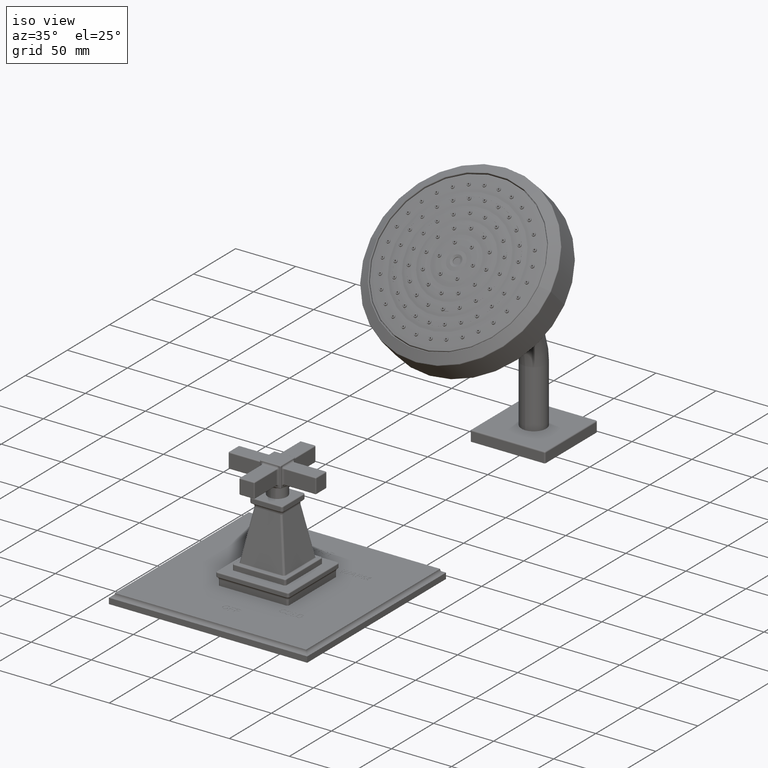
[diagram: clean part render]
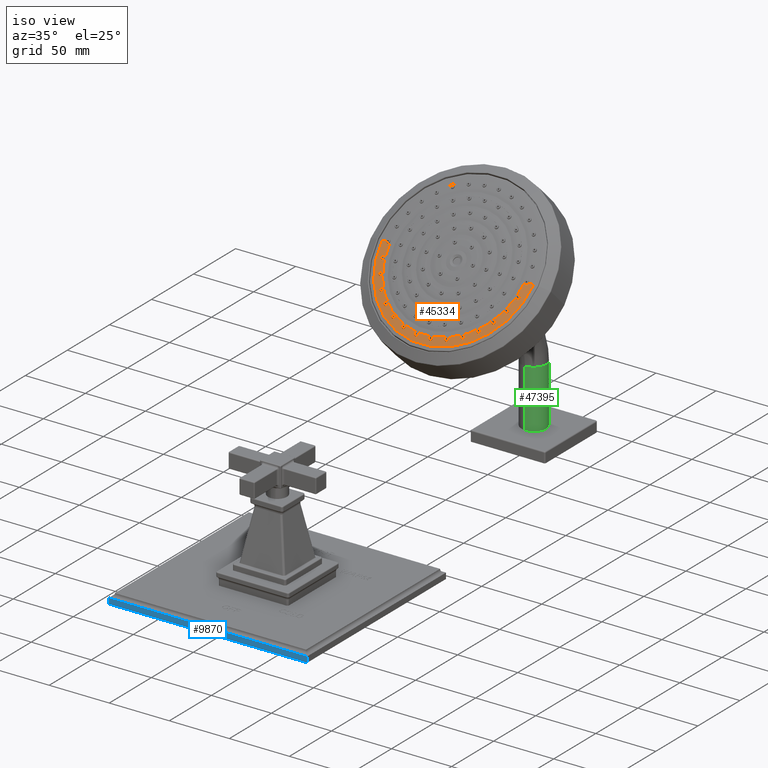
[diagram: same view with three faces highlighted in distinct colors, each labeled with its STEP entity id]
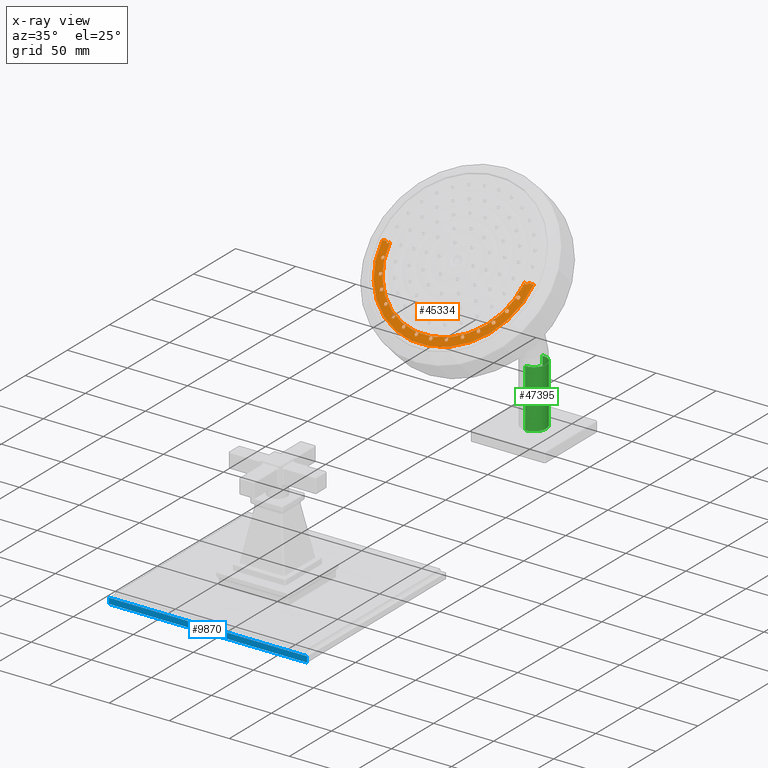
[diagram: x-ray of the same camera — body ghosted, the three highlighted faces saturated]
A machine part, iso view with three faces highlighted in distinct colors.
The next image is the same camera in x-ray (body ghosted, the three faces saturated) — at least one of them is partly hidden behind the body in this view.
Their STEP definitions:

[orange] entity #45334 — the highlighted spherical surface has radius 619.733 mm.
#27229=CARTESIAN_POINT('',(0.E0,2.561579682271E1,-1.064092308856E1));
#27230=DIRECTION('',(0.E0,-7.071067811865E-1,-7.071067811865E-1));
#27231=DIRECTION('',(9.067352907339E-2,-7.041939758069E-1,7.041939758069E-1));
#27232=AXIS2_PLACEMENT_3D('',#27229,#27230,#27231);
#27239=CARTESIAN_POINT('',(0.E0,2.561579682271E1,-1.064092308856E1));
#27240=DIRECTION('',(0.E0,7.071067811865E-1,7.071067811865E-1));
#27241=DIRECTION('',(-9.067352907339E-2,-7.041939758069E-1,7.041939758069E-1));
#27242=AXIS2_PLACEMENT_3D('',#27239,#27240,#27241);
#27265=CARTESIAN_POINT('',(0.E0,2.561579682271E1,-1.064092308856E1));
#27266=DIRECTION('',(0.E0,7.071067811865E-1,7.071067811865E-1));
#27267=DIRECTION('',(-1.015786266074E-1,-7.034492812622E-1,7.034492812622E-1));
#27268=AXIS2_PLACEMENT_3D('',#27265,#27266,#27267);
#27275=CARTESIAN_POINT('',(0.E0,2.561579682271E1,-1.064092308856E1));
#27276=DIRECTION('',(0.E0,-7.071067811865E-1,-7.071067811865E-1));
#27277=DIRECTION('',(1.015786266074E-1,-7.034492812622E-1,7.034492812622E-1));
#27278=AXIS2_PLACEMENT_3D('',#27275,#27276,#27277);
#27886=CARTESIAN_POINT('',(2.212336959181E0,8.434218306568E0,6.540655427585E0));
#27887=CARTESIAN_POINT('',(2.212336959181E0,8.431682127735E0,6.538119248751E0));
#27888=CARTESIAN_POINT('',(2.213004631525E0,8.426665166138E0,6.533014059916E0));
#27889=CARTESIAN_POINT('',(2.215935978697E0,8.419568768065E0,6.525530306223E0));
#27890=CARTESIAN_POINT('',(2.220705462538E0,8.413095835045E0,6.518427111998E0));
#27891=CARTESIAN_POINT('',(2.227080226650E0,8.407512049939E0,6.512000918360E0));
#27892=CARTESIAN_POINT('',(2.234905809169E0,8.402929842893E0,6.506384552095E0));
#27893=CARTESIAN_POINT('',(2.243850190294E0,8.399528406777E0,6.501801067707E0));
#27894=CARTESIAN_POINT('',(2.253792355567E0,8.397372585191E0,6.498331286718E0));
#27895=CARTESIAN_POINT('',(2.264279568201E0,8.396582559521E0,6.496155212791E0));
#27896=CARTESIAN_POINT('',(2.275162001075E0,8.397208205493E0,6.495342515774E0));
#27897=CARTESIAN_POINT('',(2.285819265773E0,8.399238079452E0,6.495963747996E0));
#27898=CARTESIAN_POINT('',(2.296056166893E0,8.402645576025E0,6.498018109757E0));
#27899=CARTESIAN_POINT('',(2.305304358108E0,8.407245360656E0,6.501395402549E0));
#27900=CARTESIAN_POINT('',(2.313400544725E0,8.412942815760E0,6.506022609770E0));
#27901=CARTESIAN_POINT('',(2.319955379506E0,8.419465615348E0,6.511678890309E0));
#27902=CARTESIAN_POINT('',(2.324830308222E0,8.426662319350E0,6.518231136770E0));
#27903=CARTESIAN_POINT('',(2.327805382546E0,8.434217458103E0,6.525392969520E0));
#27904=CARTESIAN_POINT('',(2.328477119466E0,8.439350209713E0,6.530436916563E0));
#27905=CARTESIAN_POINT('',(2.328477119466E0,8.441893513652E0,6.532980220501E0));
#27907=CARTESIAN_POINT('',(0.E0,8.452388055572E0,6.522485678581E0));
#27908=DIRECTION('',(0.E0,-7.071067811865E-1,7.071067811865E-1));
#27909=DIRECTION('',(-1.E0,0.E0,0.E0));
#27910=AXIS2_PLACEMENT_3D('',#27907,#27908,#27909);
#27912=CARTESIAN_POINT('',(-2.328477119466E0,8.441893513652E0,
6.532980220501E0));
#27913=CARTESIAN_POINT('',(-2.328477119466E0,8.439351524014E0,
6.530438230863E0));
#27914=CARTESIAN_POINT('',(-2.327806115332E0,8.434221529149E0,
6.525396943691E0));
#27915=CARTESIAN_POINT('',(-2.324834056388E0,8.426670268233E0,
6.518238590143E0));
#27916=CARTESIAN_POINT('',(-2.319964986621E0,8.419477400601E0,
6.511689405529E0));
#27917=CARTESIAN_POINT('',(-2.313413647380E0,8.412954053809E0,
6.506032115725E0));
#27918=CARTESIAN_POINT('',(-2.305325734597E0,8.407258256144E0,
6.501405472286E0));
#27919=CARTESIAN_POINT('',(-2.296083094937E0,8.402657251672E0,
6.498026225908E0));
#27920=CARTESIAN_POINT('',(-2.285864665380E0,8.399250314358E0,
6.495969981991E0));
#27921=CARTESIAN_POINT('',(-2.275202265711E0,8.397212292595E0,
6.495341280979E0));
#27922=CARTESIAN_POINT('',(-2.264289107166E0,8.396580746999E0,
6.496152139594E0));
#27923=CARTESIAN_POINT('',(-2.253753948990E0,8.397375424507E0,
6.498339202057E0));
#27924=CARTESIAN_POINT('',(-2.243761053883E0,8.399552461514E0,
6.501836902577E0));
#27925=CARTESIAN_POINT('',(-2.234803017807E0,8.402977811048E0,
6.506446104463E0));
#27926=CARTESIAN_POINT('',(-2.226986869612E0,8.407579190596E0,
6.512080396057E0));
#27927=CARTESIAN_POINT('',(-2.220640695689E0,8.413167861248E0,
6.518507696851E0));
#27928=CARTESIAN_POINT('',(-2.215903240440E0,8.419630968547E0,
6.525596832836E0));
#27929=CARTESIAN_POINT('',(-2.212997526472E0,8.426702867907E0,
6.533052700555E0));
#27930=CARTESIAN_POINT('',(-2.212336959181E0,8.431695740236E0,
6.538132861252E0));
#27931=CARTESIAN_POINT('',(-2.212336959181E0,8.434218306568E0,
6.540655427585E0));
#27933=CARTESIAN_POINT('',(0.E0,8.434124516782E0,6.540749217371E0));
#27934=DIRECTION('',(0.E0,7.071067811865E-1,-7.071067811865E-1));
#27935=DIRECTION('',(1.E0,0.E0,0.E0));
#27936=AXIS2_PLACEMENT_3D('',#27933,#27934,#27935);
#27938=CARTESIAN_POINT('',(-1.193271417773E0,7.049868710465E0,
5.144834165629E0));
#27939=CARTESIAN_POINT('',(-1.193293441669E0,7.047520174027E0,
5.142070342618E0));
#27940=CARTESIAN_POINT('',(-1.192658978641E0,7.042801023731E0,
5.136565508194E0));
#27941=CARTESIAN_POINT('',(-1.189728373833E0,7.035914994043E0,
5.128677176883E0));
#27942=CARTESIAN_POINT('',(-1.184893119947E0,7.029415851347E0,
5.121380844032E0));
#27943=CARTESIAN_POINT('',(-1.178383420646E0,7.023588755057E0,
5.114995365644E0));
#27944=CARTESIAN_POINT('',(-1.170331470856E0,7.018558646314E0,
5.109658199470E0));
#27945=CARTESIAN_POINT('',(-1.161147253921E0,7.014572094326E0,
5.105629874255E0));
#27946=CARTESIAN_POINT('',(-1.150974090724E0,7.011695962444E0,
5.102978725969E0));
#27947=CARTESIAN_POINT('',(-1.140358119436E0,7.010082930238E0,
5.101845047033E0));
#27948=CARTESIAN_POINT('',(-1.129441605440E0,7.009758996570E0,
5.102249172786E0));
#27949=CARTESIAN_POINT('',(-1.118830256994E0,7.010745226964E0,
5.104172301083E0));
#27950=CARTESIAN_POINT('',(-1.108670435016E0,7.013029189393E0,
5.107589265231E0));
#27951=CARTESIAN_POINT('',(-1.099509808592E0,7.016496879944E0,
5.112326574153E0));
#27952=CARTESIAN_POINT('',(-1.091528121076E0,7.021077728551E0,
5.118288285367E0));
#27953=CARTESIAN_POINT('',(-1.085156597765E0,7.026509454776E0,
5.125134899784E0));
#27954=CARTESIAN_POINT('',(-1.080491303898E0,7.032648853640E0,
5.132691078725E0));
#27955=CARTESIAN_POINT('',(-1.077705383211E0,7.039219892427E0,
5.140619726039E0));
#27956=CARTESIAN_POINT('',(-1.077114475930E0,7.043760246140E0,
5.146002182747E0));
#27957=CARTESIAN_POINT('',(-1.077135605822E0,7.046031255210E0,
5.148671620884E0));
#27959=CARTESIAN_POINT('',(-1.077135605822E0,7.046031255210E0,
5.148671620884E0));
#27960=CARTESIAN_POINT('',(-1.077157176241E0,7.048349611410E0,
5.151396712798E0));
#27961=CARTESIAN_POINT('',(-1.077860659350E0,7.052995020784E0,
5.156809632833E0));
#27962=CARTESIAN_POINT('',(-1.080817106742E0,7.059740162219E0,
5.164530051033E0));
#27963=CARTESIAN_POINT('',(-1.085594656641E0,7.066097663618E0,
5.171663619497E0));
#27964=CARTESIAN_POINT('',(-1.091984221570E0,7.071812523532E0,
5.177925479368E0));
#27965=CARTESIAN_POINT('',(-1.099875349851E0,7.076769903210E0,
5.183188522369E0));
#27966=CARTESIAN_POINT('',(-1.108878241378E0,7.080725762875E0,
5.187193765117E0));
#27967=CARTESIAN_POINT('',(-1.118843229023E0,7.083609494149E0,
5.189868926361E0));
#27968=CARTESIAN_POINT('',(-1.129242829502E0,7.085274307984E0,
5.191079283937E0));
#27969=CARTESIAN_POINT('',(-1.139938560376E0,7.085700701137E0,
5.190811844872E0));
#27970=CARTESIAN_POINT('',(-1.150378897479E0,7.084867069134E0,
5.189080835007E0));
#27971=CARTESIAN_POINT('',(-1.160448428635E0,7.082776796889E0,
5.185898515222E0));
#27972=CARTESIAN_POINT('',(-1.169649971017E0,7.079508159164E0,
5.181392671899E0));
#27973=CARTESIAN_POINT('',(-1.177806777774E0,7.075093302055E0,
5.175613803629E0));
#27974=CARTESIAN_POINT('',(-1.184464509480E0,7.069742218675E0,
5.168841542169E0));
#27975=CARTESIAN_POINT('',(-1.189456298049E0,7.063577731575E0,
5.161232335282E0));
#27976=CARTESIAN_POINT('',(-1.192529136758E0,7.056884499954E0,
5.153139174491E0));
#27977=CARTESIAN_POINT('',(-1.193249421306E0,7.052214321903E0,
5.147594546421E0));
#27978=CARTESIAN_POINT('',(-1.193271417773E0,7.049868710465E0,
5.144834165629E0));
#27980=CARTESIAN_POINT('',(-1.577267310327E0,7.247762768661E0,
5.341419300927E0));
#27981=CARTESIAN_POINT('',(-1.577286227425E0,7.245385625060E0,
5.338685453105E0));
#27982=CARTESIAN_POINT('',(-1.576646516341E0,7.240601519366E0,
5.333247879912E0));
#27983=CARTESIAN_POINT('',(-1.573702914769E0,7.233593042983E0,
5.325472814550E0));
#27984=CARTESIAN_POINT('',(-1.568864710411E0,7.226969907799E0,
5.318320715396E0));
#27985=CARTESIAN_POINT('',(-1.562334195069E0,7.220992508697E0,
5.312071638678E0));
#27986=CARTESIAN_POINT('',(-1.554283069547E0,7.215823652242E0,
5.306896384005E0));
#27987=CARTESIAN_POINT('',(-1.545074785233E0,7.211686322688E0,
5.303016678828E0));
#27988=CARTESIAN_POINT('',(-1.534891529109E0,7.208672385132E0,
5.300520778855E0));
#27989=CARTESIAN_POINT('',(-1.524252612682E0,7.206932177959E0,
5.299532090445E0));
#27990=CARTESIAN_POINT('',(-1.513324207584E0,7.206499445476E0,
5.300073583272E0));
#27991=CARTESIAN_POINT('',(-1.502690315521E0,7.207400735018E0,
5.302120236389E0));
#27992=CARTESIAN_POINT('',(-1.492517441778E0,7.209628117713E0,
5.305647092086E0));
#27993=CARTESIAN_POINT('',(-1.483385323638E0,7.213054936731E0,
5.310453465856E0));
#27994=CARTESIAN_POINT('',(-1.475456944148E0,7.217600179148E0,
5.316430750953E0));
#27995=CARTESIAN_POINT('',(-1.469142068760E0,7.222997228698E0,
5.323233583980E0));
#27996=CARTESIAN_POINT('',(-1.464506583445E0,7.229119650088E0,
5.330710400214E0));
#27997=CARTESIAN_POINT('',(-1.461717200184E0,7.235710830589E0,
5.338550449992E0));
#27998=CARTESIAN_POINT('',(-1.461112135562E0,7.240314163530E0,
5.343898343374E0));
#27999=CARTESIAN_POINT('',(-1.461130351981E0,7.242627198820E0,
5.346554870769E0));
#28001=CARTESIAN_POINT('',(-1.461130351981E0,7.242627198820E0,
5.346554870769E0));
#28002=CARTESIAN_POINT('',(-1.461148680156E0,7.244954424168E0,
5.349227695483E0));
#28003=CARTESIAN_POINT('',(-1.461833512375E0,7.249635148911E0,
5.354541935868E0));
#28004=CARTESIAN_POINT('',(-1.464764461380E0,7.256497357579E0,
5.362149788679E0));
#28005=CARTESIAN_POINT('',(-1.469520870555E0,7.262994226650E0,
5.369164309138E0));
#28006=CARTESIAN_POINT('',(-1.475920747455E0,7.268879757746E0,
5.375320090099E0));
#28007=CARTESIAN_POINT('',(-1.483806017931E0,7.273992934491E0,
5.380447111508E0));
#28008=CARTESIAN_POINT('',(-1.492819770785E0,7.278109614458E0,
5.384321693415E0));
#28009=CARTESIAN_POINT('',(-1.502766774162E0,7.281139001790E0,
5.386858034292E0));
#28010=CARTESIAN_POINT('',(-1.513158093996E0,7.282944850079E0,
5.387946001388E0));
#28011=CARTESIAN_POINT('',(-1.523847667783E0,7.283501996572E0,
5.387570540428E0));
#28012=CARTESIAN_POINT('',(-1.534322881201E0,7.282778358090E0,
5.385743473637E0));
#28013=CARTESIAN_POINT('',(-1.544455079665E0,7.280761030716E0,
5.382462179167E0));
#28014=CARTESIAN_POINT('',(-1.553699729271E0,7.277529684491E0,
5.377869950437E0));
#28015=CARTESIAN_POINT('',(-1.561875797280E0,7.273121520207E0,
5.372026734092E0));
#28016=CARTESIAN_POINT('',(-1.568516153713E0,7.267765917272E0,
5.365240539780E0));
#28017=CARTESIAN_POINT('',(-1.573482702126E0,7.261582128546E0,
5.357661550180E0));
#28018=CARTESIAN_POINT('',(-1.576534510458E0,7.254853650160E0,
5.349638491615E0));
#28019=CARTESIAN_POINT('',(-1.577248420960E0,7.250136427509E0,
5.344149141089E0));
#28020=CARTESIAN_POINT('',(-1.577267310327E0,7.247762768661E0,
5.341419300927E0));
#28022=CARTESIAN_POINT('',(-1.894866951678E0,7.497677949745E0,
5.590249486898E0));
#28023=CARTESIAN_POINT('',(-1.894881909834E0,7.495266795636E0,
5.587556279103E0));
#28024=CARTESIAN_POINT('',(-1.894235662404E0,7.490408275712E0,
5.582205952731E0));
#28025=CARTESIAN_POINT('',(-1.891289477398E0,7.483276939985E0,
5.574578800539E0));
#28026=CARTESIAN_POINT('',(-1.886446472126E0,7.476512088904E0,
5.567575408491E0));
#28027=CARTESIAN_POINT('',(-1.879921985749E0,7.470395622398E0,
5.561486091977E0));
#28028=CARTESIAN_POINT('',(-1.871859704816E0,7.465073319057E0,
5.556457319096E0));
#28029=CARTESIAN_POINT('',(-1.862651189703E0,7.460796502309E0,
5.552725317357E0));
#28030=CARTESIAN_POINT('',(-1.852450647901E0,7.457647194304E0,
5.550364182099E0));
#28031=CARTESIAN_POINT('',(-1.841803395379E0,7.455793298576E0,
5.549499612418E0));
#28032=CARTESIAN_POINT('',(-1.830861948111E0,7.455266321072E0,
5.550149500062E0));
#28033=CARTESIAN_POINT('',(-1.820219910733E0,7.456100072081E0,
5.552284397243E0));
#28034=CARTESIAN_POINT('',(-1.810053534699E0,7.458284413917E0,
5.555873029661E0));
#28035=CARTESIAN_POINT('',(-1.800956123795E0,7.461683509563E0,
5.560696626794E0));
#28036=CARTESIAN_POINT('',(-1.793075591615E0,7.466206134228E0,
5.566636621850E0));
#28037=CARTESIAN_POINT('',(-1.786786514408E0,7.471599085859E0,
5.573368003437E0));
#28038=CARTESIAN_POINT('',(-1.782150938676E0,7.477745888580E0,
5.580753747603E0));
#28039=CARTESIAN_POINT('',(-1.779337044850E0,7.484408325013E0,
5.588508933655E0));
#28040=CARTESIAN_POINT('',(-1.778714289713E0,7.489101471208E0,
5.593818027961E0));
#28041=CARTESIAN_POINT('',(-1.778728794520E0,7.491468687309E0,
5.596458749334E0));
#28043=CARTESIAN_POINT('',(-1.778728794520E0,7.491468687309E0,
5.596458749334E0));
#28044=CARTESIAN_POINT('',(-1.778743247809E0,7.493827495436E0,
5.599090091287E0));
#28045=CARTESIAN_POINT('',(-1.779417874540E0,7.498582958186E0,
5.604321968257E0));
#28046=CARTESIAN_POINT('',(-1.782338969196E0,7.505588993613E0,
5.611811870792E0));
#28047=CARTESIAN_POINT('',(-1.787104760517E0,7.512252264454E0,
5.618710497250E0));
#28048=CARTESIAN_POINT('',(-1.793508196200E0,7.518291203087E0,
5.624726981108E0));
#28049=CARTESIAN_POINT('',(-1.801402642345E0,7.523558246606E0,
5.629713194993E0));
#28050=CARTESIAN_POINT('',(-1.810395336416E0,7.527807583349E0,
5.633439179304E0));
#28051=CARTESIAN_POINT('',(-1.820327689743E0,7.530969420361E0,
5.635844956832E0));
#28052=CARTESIAN_POINT('',(-1.830704676013E0,7.532895939093E0,
5.636821511369E0));
#28053=CARTESIAN_POINT('',(-1.841413342526E0,7.533561069394E0,
5.636352503276E0));
#28054=CARTESIAN_POINT('',(-1.851933369910E0,7.532915374932E0,
5.634441596310E0));
#28055=CARTESIAN_POINT('',(-1.862120640233E0,7.530937252902E0,
5.631080965981E0));
#28056=CARTESIAN_POINT('',(-1.871394837229E0,7.527709385312E0,
5.626428550936E0));
#28057=CARTESIAN_POINT('',(-1.879566166468E0,7.523282640589E0,
5.620562603116E0));
#28058=CARTESIAN_POINT('',(-1.886183364597E0,7.517891155680E0,
5.613795541851E0));
#28059=CARTESIAN_POINT('',(-1.891118684259E0,7.511659717005E0,
5.606281126709E0));
#28060=CARTESIAN_POINT('',(-1.894147570735E0,7.504864281289E0,
5.598352823182E0));
#28061=CARTESIAN_POINT('',(-1.894852014895E0,7.500085658847E0,
5.592938846692E0));
#28062=CARTESIAN_POINT('',(-1.894866951678E0,7.497677949745E0,
5.590249486898E0));
#28064=CARTESIAN_POINT('',(-2.132189635155E0,7.788691022536E0,
5.880450388936E0));
#28065=CARTESIAN_POINT('',(-2.132199979365E0,7.786239925835E0,
5.877804239927E0));
#28066=CARTESIAN_POINT('',(-2.131546003053E0,7.781296540824E0,
5.872552190062E0));
#28067=CARTESIAN_POINT('',(-2.128595355614E0,7.774031786529E0,
5.865083601165E0));
#28068=CARTESIAN_POINT('',(-2.123744455583E0,7.767118473920E0,
5.858232803158E0));
#28069=CARTESIAN_POINT('',(-2.117218725292E0,7.760860859673E0,
5.852299801852E0));
#28070=CARTESIAN_POINT('',(-2.109142614501E0,7.755392953538E0,
5.847413568487E0));
#28071=CARTESIAN_POINT('',(-2.099926414937E0,7.750988991237E0,
5.843818494650E0));
#28072=CARTESIAN_POINT('',(-2.089715610512E0,7.747726604308E0,
5.841580067617E0));
#28073=CARTESIAN_POINT('',(-2.079054014801E0,7.745781668405E0,
5.840819779097E0));
#28074=CARTESIAN_POINT('',(-2.068098807624E0,7.745189960380E0,
5.841556485784E0));
#28075=CARTESIAN_POINT('',(-2.057475106559E0,7.745985614127E0,
5.843748537236E0));
#28076=CARTESIAN_POINT('',(-2.047361042314E0,7.748144936185E0,
5.847348000720E0));
#28077=CARTESIAN_POINT('',(-2.038327536189E0,7.751524747574E0,
5.852128720969E0));
#28078=CARTESIAN_POINT('',(-2.030491937533E0,7.756037254535E0,
5.857981244064E0));
#28079=CARTESIAN_POINT('',(-2.024198748731E0,7.761456968057E0,
5.864619035537E0));
#28080=CARTESIAN_POINT('',(-2.019530930055E0,7.767677689230E0,
5.871917107741E0));
#28081=CARTESIAN_POINT('',(-2.016679744958E0,7.774458992863E0,
5.879592050075E0));
#28082=CARTESIAN_POINT('',(-2.016040343246E0,7.779255300120E0,
5.884847574035E0));
#28083=CARTESIAN_POINT('',(-2.016050434053E0,7.781679431733E0,
5.887461979739E0));
#28085=CARTESIAN_POINT('',(-2.016050434053E0,7.781679431733E0,
5.887461979739E0));
#28086=CARTESIAN_POINT('',(-2.016060469126E0,7.784090174057E0,
5.890061945204E0));
#28087=CARTESIAN_POINT('',(-2.016731794143E0,7.788953838554E0,
5.895225660245E0));
#28088=CARTESIAN_POINT('',(-2.019659704519E0,7.796126126030E0,
5.902597234035E0));
#28089=CARTESIAN_POINT('',(-2.024445452929E0,7.802957993664E0,
5.909368357080E0));
#28090=CARTESIAN_POINT('',(-2.030855710749E0,7.809140205898E0,
5.915234638597E0));
#28091=CARTESIAN_POINT('',(-2.038747954080E0,7.814540671378E0,
5.920071427859E0));
#28092=CARTESIAN_POINT('',(-2.047718909478E0,7.818906522104E0,
5.923656471328E0));
#28093=CARTESIAN_POINT('',(-2.057636442647E0,7.822181114360E0,
5.925945215978E0));
#28094=CARTESIAN_POINT('',(-2.068027481454E0,7.824209055780E0,
5.926829342766E0));
#28095=CARTESIAN_POINT('',(-2.078786927766E0,7.824950969366E0,
5.926279536513E0));
#28096=CARTESIAN_POINT('',(-2.089356316329E0,7.824343413964E0,
5.924297418696E0));
#28097=CARTESIAN_POINT('',(-2.099570726172E0,7.822367769894E0,
5.920883587770E0));
#28098=CARTESIAN_POINT('',(-2.108836142953E0,7.819117561754E0,
5.916213513718E0));
#28099=CARTESIAN_POINT('',(-2.116977116509E0,7.814652510421E0,
5.910373664073E0));
#28100=CARTESIAN_POINT('',(-2.123567456319E0,7.809200721581E0,
5.903663680706E0));
#28101=CARTESIAN_POINT('',(-2.128478495949E0,7.802887330311E0,
5.896234756073E0));
#28102=CARTESIAN_POINT('',(-2.131486373177E0,7.795991839618E0,
5.888416605136E0));
#28103=CARTESIAN_POINT('',(-2.132179308645E0,7.791137924990E0,
5.883092009928E0));
#28104=CARTESIAN_POINT('',(-2.132189635155E0,7.788691022536E0,
5.880450388936E0));
#28106=CARTESIAN_POINT('',(-2.278863152143E0,8.108082673082E0,
6.199339481319E0));
#28107=CARTESIAN_POINT('',(-2.278868433145E0,8.105588243702E0,
6.196745472404E0));
#28108=CARTESIAN_POINT('',(-2.278206585879E0,8.100554898069E0,
6.191599877195E0));
#28109=CARTESIAN_POINT('',(-2.275249346322E0,8.093150763727E0,
6.184292217028E0));
#28110=CARTESIAN_POINT('',(-2.270393103603E0,8.086094667286E0,
6.177596821408E0));
#28111=CARTESIAN_POINT('',(-2.263861764765E0,8.079700071112E0,
6.171810043029E0));
#28112=CARTESIAN_POINT('',(-2.255781525952E0,8.074106006456E0,
6.167059769279E0));
#28113=CARTESIAN_POINT('',(-2.246558729095E0,8.069591965740E0,
6.163582971460E0));
#28114=CARTESIAN_POINT('',(-2.236350000720E0,8.066241485300E0,
6.161445825991E0));
#28115=CARTESIAN_POINT('',(-2.225683195625E0,8.064230009141E0,
6.160761111820E0));
#28116=CARTESIAN_POINT('',(-2.214726991733E0,8.063599296239E0,
6.161549989191E0));
#28117=CARTESIAN_POINT('',(-2.204129660352E0,8.064381008856E0,
6.163759893622E0));
#28118=CARTESIAN_POINT('',(-2.194065104085E0,8.066540144748E0,
6.167331507877E0));
#28119=CARTESIAN_POINT('',(-2.185081462623E0,8.069928480087E0,
6.172038474037E0));
#28120=CARTESIAN_POINT('',(-2.177268362166E0,8.074467163619E0,
6.177787012547E0));
#28121=CARTESIAN_POINT('',(-2.170958083179E0,8.079949831338E0,
6.184318791574E0));
#28122=CARTESIAN_POINT('',(-2.166252199548E0,8.086280836081E0,
6.191520999963E0));
#28123=CARTESIAN_POINT('',(-2.163370201747E0,8.093201089486E0,
6.199095364546E0));
#28124=CARTESIAN_POINT('',(-2.162718074708E0,8.098098768532E0,
6.204273069494E0));
#28125=CARTESIAN_POINT('',(-2.162723242490E0,8.100575204409E0,
6.206846949992E0));
#28127=CARTESIAN_POINT('',(-2.162723242490E0,8.100575204409E0,
6.206846949992E0));
#28128=CARTESIAN_POINT('',(-2.162728403978E0,8.103048624358E0,
6.209417695888E0));
#28129=CARTESIAN_POINT('',(-2.163398744117E0,8.108034912960E0,
6.214513198274E0));
#28130=CARTESIAN_POINT('',(-2.166334650759E0,8.115372772283E0,
6.221754814051E0));
#28131=CARTESIAN_POINT('',(-2.171122669869E0,8.122351006526E0,
6.228378417243E0));
#28132=CARTESIAN_POINT('',(-2.177525147447E0,8.128663178498E0,
6.234096747145E0));
#28133=CARTESIAN_POINT('',(-2.185386677981E0,8.134175338556E0,
6.238791019120E0));
#28134=CARTESIAN_POINT('',(-2.194336299151E0,8.138651519703E0,
6.242264801552E0));
#28135=CARTESIAN_POINT('',(-2.204243119812E0,8.142026777441E0,
6.244467814869E0));
#28136=CARTESIAN_POINT('',(-2.214671352516E0,8.144142065787E0,
6.245292144688E0));
#28137=CARTESIAN_POINT('',(-2.225501131692E0,8.144936669126E0,
6.244690458214E0));
#28138=CARTESIAN_POINT('',(-2.236132668677E0,8.144336571986E0,
6.242664873542E0));
#28139=CARTESIAN_POINT('',(-2.246376341910E0,8.142329882404E0,
6.239228025625E0));
#28140=CARTESIAN_POINT('',(-2.255630003134E0,8.139025914913E0,
6.234572959286E0));
#28141=CARTESIAN_POINT('',(-2.263739160853E0,8.134492546507E0,
6.228790623680E0));
#28142=CARTESIAN_POINT('',(-2.270301229984E0,8.128954222240E0,
6.222167459876E0));
#28143=CARTESIAN_POINT('',(-2.275189745320E0,8.122532357406E0,
6.214846389538E0));
#28144=CARTESIAN_POINT('',(-2.278176584211E0,8.115515648642E0,
6.207157651885E0));
#28145=CARTESIAN_POINT('',(-2.278857877319E0,8.110574183925E0,
6.201930455187E0));
#28146=CARTESIAN_POINT('',(-2.278863152143E0,8.108082673082E0,
6.199339481319E0));
#28148=CARTESIAN_POINT('',(2.162723242490E0,8.100575204409E0,6.206846949992E0));
#28149=CARTESIAN_POINT('',(2.162718048165E0,8.098086048741E0,6.204259849196E0));
#28150=CARTESIAN_POINT('',(2.163376795794E0,8.093167353171E0,6.199059422265E0));
#28151=CARTESIAN_POINT('',(2.166280436191E0,8.086229097485E0,6.191463489105E0));
#28152=CARTESIAN_POINT('',(2.171005844578E0,8.079898707344E0,6.184259345703E0));
#28153=CARTESIAN_POINT('',(2.177325363493E0,8.074427912773E0,6.177738691962E0));
#28154=CARTESIAN_POINT('',(2.185125845645E0,8.069909572638E0,6.172012966162E0));
#28155=CARTESIAN_POINT('',(2.194076543171E0,8.066539199856E0,6.167329017355E0));
#28156=CARTESIAN_POINT('',(2.204091531377E0,8.064388524319E0,6.163772733873E0));
#28157=CARTESIAN_POINT('',(2.214651711421E0,8.063600924105E0,6.161561607114E0));
#28158=CARTESIAN_POINT('',(2.225594662814E0,8.064219361339E0,6.160761715385E0));
#28159=CARTESIAN_POINT('',(2.236268627209E0,8.066220062750E0,6.161434284189E0));
#28160=CARTESIAN_POINT('',(2.246499509594E0,8.069567204634E0,6.163565037809E0));
#28161=CARTESIAN_POINT('',(2.255737624275E0,8.074079908830E0,6.167038426396E0));
#28162=CARTESIAN_POINT('',(2.263831786681E0,8.079674811098E0,6.171787734955E0));
#28163=CARTESIAN_POINT('',(2.270375351262E0,8.086072813253E0,6.177576442126E0));
#28164=CARTESIAN_POINT('',(2.275241902649E0,8.093135543105E0,6.184277374672E0));
#28165=CARTESIAN_POINT('',(2.278205217365E0,8.100547125288E0,6.191591976760E0));
#28166=CARTESIAN_POINT('',(2.278868438505E0,8.105585712178E0,6.196742839819E0));
#28167=CARTESIAN_POINT('',(2.278863152143E0,8.108082673082E0,6.199339481319E0));
#28169=CARTESIAN_POINT('',(2.278863152143E0,8.108082673082E0,6.199339481319E0));
#28170=CARTESIAN_POINT('',(2.278857876825E0,8.110574417659E0,6.201930698251E0));
#28171=CARTESIAN_POINT('',(2.278176528631E0,8.115516272709E0,6.207158308021E0));
#28172=CARTESIAN_POINT('',(2.275188766665E0,8.122534044435E0,6.214848272497E0));
#28173=CARTESIAN_POINT('',(2.270300429807E0,8.128954996516E0,6.222168370360E0));
#28174=CARTESIAN_POINT('',(2.263737582073E0,8.134493771224E0,6.228792105127E0));
#28175=CARTESIAN_POINT('',(2.255626437079E0,8.139027581383E0,6.234575162023E0));
#28176=CARTESIAN_POINT('',(2.246372759441E0,8.142330748536E0,6.239229398439E0));
#28177=CARTESIAN_POINT('',(2.236129616652E0,8.144337157203E0,6.242665884363E0));
#28178=CARTESIAN_POINT('',(2.225482638612E0,8.144937725769E0,6.244693994935E0));
#28179=CARTESIAN_POINT('',(2.214615155125E0,8.144136086065E0,6.245293336881E0));
#28180=CARTESIAN_POINT('',(2.204146740365E0,8.142002880076E0,6.244455676306E0));
#28181=CARTESIAN_POINT('',(2.194205656788E0,8.138598407524E0,6.242226806770E0));
#28182=CARTESIAN_POINT('',(2.185260117267E0,8.134100178472E0,6.238729564224E0));
#28183=CARTESIAN_POINT('',(2.177422865008E0,8.128577034306E0,6.234020672228E0));
#28184=CARTESIAN_POINT('',(2.171058194178E0,8.122271698664E0,6.228304465818E0));
#28185=CARTESIAN_POINT('',(2.166304570201E0,8.115311921091E0,6.221695516777E0));
#28186=CARTESIAN_POINT('',(2.163393418759E0,8.108004242886E0,6.214482014905E0));
#28187=CARTESIAN_POINT('',(2.162728382609E0,8.103038384541E0,6.209407053147E0));
#28188=CARTESIAN_POINT('',(2.162723242490E0,8.100575204409E0,6.206846949992E0));
#28190=CARTESIAN_POINT('',(2.016050434053E0,7.781679431733E0,5.887461979739E0));
#28191=CARTESIAN_POINT('',(2.016040309278E0,7.779247139928E0,5.884838773337E0));
#28192=CARTESIAN_POINT('',(2.016684050027E0,7.774438774440E0,5.879569693849E0));
#28193=CARTESIAN_POINT('',(2.019545559929E0,7.767652211573E0,5.871887780932E0));
#28194=CARTESIAN_POINT('',(2.024216763425E0,7.761439335254E0,5.864597748540E0));
#28195=CARTESIAN_POINT('',(2.030496305211E0,7.756036701352E0,5.857980098943E0));
#28196=CARTESIAN_POINT('',(2.038295019332E0,7.751542504297E0,5.852151962005E0));
#28197=CARTESIAN_POINT('',(2.047285442437E0,7.748168611721E0,5.847383036117E0));
#28198=CARTESIAN_POINT('',(2.057368134030E0,7.746001491749E0,5.843779096857E0));
#28199=CARTESIAN_POINT('',(2.067985890445E0,7.745190739178E0,5.841571500100E0));
#28200=CARTESIAN_POINT('',(2.078957763639E0,7.745769579159E0,5.840818816781E0));
#28201=CARTESIAN_POINT('',(2.089637499782E0,7.747706658067E0,5.841568350403E0));
#28202=CARTESIAN_POINT('',(2.099863566193E0,7.750963678132E0,5.843799070629E0));
#28203=CARTESIAN_POINT('',(2.109095294273E0,7.755365454478E0,5.847389836379E0));
#28204=CARTESIAN_POINT('',(2.117186343462E0,7.760834061828E0,5.852274951025E0));
#28205=CARTESIAN_POINT('',(2.123726171439E0,7.767096456277E0,5.858211340523E0));
#28206=CARTESIAN_POINT('',(2.128586626269E0,7.774014578773E0,5.865066129074E0));
#28207=CARTESIAN_POINT('',(2.131544601479E0,7.781288144140E0,5.872543305589E0));
#28208=CARTESIAN_POINT('',(2.132199991122E0,7.786237140131E0,5.877801232543E0));
#28209=CARTESIAN_POINT('',(2.132189635155E0,7.788691022536E0,5.880450388936E0));
#28211=CARTESIAN_POINT('',(2.132189635155E0,7.788691022536E0,5.880450388936E0));
#28212=CARTESIAN_POINT('',(2.132179310588E0,7.791137464607E0,5.883091512908E0));
#28213=CARTESIAN_POINT('',(2.131486704708E0,7.795990990018E0,5.888415646759E0));
#28214=CARTESIAN_POINT('',(2.128478079866E0,7.802888379175E0,5.896235940080E0));
#28215=CARTESIAN_POINT('',(2.123565713663E0,7.809202509474E0,5.903665828677E0));
#28216=CARTESIAN_POINT('',(2.116976147033E0,7.814652850057E0,5.910374152241E0));
#28217=CARTESIAN_POINT('',(2.108839071673E0,7.819116229233E0,5.916211708260E0));
#28218=CARTESIAN_POINT('',(2.099566796421E0,7.822369743057E0,5.920886210163E0));
#28219=CARTESIAN_POINT('',(2.089322917228E0,7.824349265286E0,5.924307924476E0));
#28220=CARTESIAN_POINT('',(2.078705271560E0,7.824952679203E0,5.926291629903E0));
#28221=CARTESIAN_POINT('',(2.067893177993E0,7.824193215060E0,5.926829105572E0));
#28222=CARTESIAN_POINT('',(2.057473876924E0,7.822139492746E0,5.925920706938E0));
#28223=CARTESIAN_POINT('',(2.047559565893E0,7.818841812558E0,5.923606645137E0));
#28224=CARTESIAN_POINT('',(2.038612237945E0,7.814461023630E0,5.920002517766E0));
#28225=CARTESIAN_POINT('',(2.030760230893E0,7.809060728215E0,5.915160862669E0));
#28226=CARTESIAN_POINT('',(2.024389194391E0,7.802889356071E0,5.909301355952E0));
#28227=CARTESIAN_POINT('',(2.019638546927E0,7.796082512769E0,5.902552829780E0));
#28228=CARTESIAN_POINT('',(2.016728623112E0,7.788934777851E0,5.895205491424E0));
#28229=CARTESIAN_POINT('',(2.016060445526E0,7.784084504551E0,5.890055830690E0));
#28230=CARTESIAN_POINT('',(2.016050434053E0,7.781679431733E0,5.887461979739E0));
#28232=CARTESIAN_POINT('',(1.778728794520E0,7.491468687309E0,5.596458749334E0));
#28233=CARTESIAN_POINT('',(1.778714264181E0,7.489097304405E0,5.593813379731E0));
#28234=CARTESIAN_POINT('',(1.779339299174E0,7.484399544875E0,5.588498877941E0));
#28235=CARTESIAN_POINT('',(1.782154458518E0,7.477741364560E0,5.580748299501E0));
#28236=CARTESIAN_POINT('',(1.786781364841E0,7.471606717510E0,5.573377104762E0));
#28237=CARTESIAN_POINT('',(1.793045706060E0,7.466229713195E0,5.566666322959E0));
#28238=CARTESIAN_POINT('',(1.800884565934E0,7.461719165848E0,5.560744524468E0));
#28239=CARTESIAN_POINT('',(1.809939985662E0,7.458318802801E0,5.555924264406E0));
#28240=CARTESIAN_POINT('',(1.820080626091E0,7.456120563593E0,5.552323031716E0));
#28241=CARTESIAN_POINT('',(1.830721614156E0,7.455267933736E0,5.550167180181E0));
#28242=CARTESIAN_POINT('',(1.841681926753E0,7.455779043206E0,5.549497445235E0));
#28243=CARTESIAN_POINT('',(1.852350814072E0,7.457622738886E0,5.550348180885E0));
#28244=CARTESIAN_POINT('',(1.862569751584E0,7.460764700698E0,5.552699034127E0));
#28245=CARTESIAN_POINT('',(1.871799527076E0,7.465039210640E0,5.556426054863E0));
#28246=CARTESIAN_POINT('',(1.879880933497E0,7.470362419224E0,5.561453673812E0));
#28247=CARTESIAN_POINT('',(1.886423348256E0,7.476484964354E0,5.567547746801E0));
#28248=CARTESIAN_POINT('',(1.891277585213E0,7.483254076578E0,5.574554624392E0));
#28249=CARTESIAN_POINT('',(1.894234049583E0,7.490397890006E0,5.582194541907E0));
#28250=CARTESIAN_POINT('',(1.894881931182E0,7.495263354403E0,5.587552435320E0));
#28251=CARTESIAN_POINT('',(1.894866951678E0,7.497677949745E0,5.590249486898E0));
#28253=CARTESIAN_POINT('',(1.894866951678E0,7.497677949745E0,5.590249486898E0));
#28254=CARTESIAN_POINT('',(1.894852010633E0,7.500086345838E0,5.592939614046E0));
#28255=CARTESIAN_POINT('',(1.894147187642E0,7.504866678227E0,5.598355542177E0));
#28256=CARTESIAN_POINT('',(1.891115523609E0,7.511665689347E0,5.606288151118E0));
#28257=CARTESIAN_POINT('',(1.886174975050E0,7.517899916870E0,5.613806270982E0));
#28258=CARTESIAN_POINT('',(1.879553908493E0,7.523290840878E0,5.620573143755E0));
#28259=CARTESIAN_POINT('',(1.871378758973E0,7.527716655560E0,5.626438485560E0));
#28260=CARTESIAN_POINT('',(1.862093661971E0,7.530945328241E0,5.631093032416E0));
#28261=CARTESIAN_POINT('',(1.851878977E0,7.532923564912E0,5.634456892105E0));
#28262=CARTESIAN_POINT('',(1.841322692185E0,7.533562437277E0,5.636364285497E0));
#28263=CARTESIAN_POINT('',(1.830581147384E0,7.532881711438E0,5.636819604297E0));
#28264=CARTESIAN_POINT('',(1.820193008914E0,7.530935748442E0,5.635822606623E0));
#28265=CARTESIAN_POINT('',(1.810277784794E0,7.527760786961E0,5.633400241245E0));
#28266=CARTESIAN_POINT('',(1.801311695970E0,7.523505658749E0,5.629664782673E0));
#28267=CARTESIAN_POINT('',(1.793453485381E0,7.518245986470E0,5.624682697861E0));
#28268=CARTESIAN_POINT('',(1.787077504747E0,7.512218652551E0,5.618676061853E0));
#28269=CARTESIAN_POINT('',(1.782333678859E0,7.505576362415E0,5.611798369934E0));
#28270=CARTESIAN_POINT('',(1.779417814162E0,7.498580795288E0,5.604319560792E0));
#28271=CARTESIAN_POINT('',(1.778743249589E0,7.493827785969E0,5.599090415388E0));
#28272=CARTESIAN_POINT('',(1.778728794520E0,7.491468687309E0,5.596458749334E0));
#28274=CARTESIAN_POINT('',(1.461130351981E0,7.242627198820E0,5.346554870769E0));
#28275=CARTESIAN_POINT('',(1.461112127908E0,7.240313191752E0,5.343897227285E0));
#28276=CARTESIAN_POINT('',(1.461717795436E0,7.235711847318E0,5.338551561889E0));
#28277=CARTESIAN_POINT('',(1.464499581596E0,7.229135532636E0,5.330729318767E0));
#28278=CARTESIAN_POINT('',(1.469111449144E0,7.223032209522E0,5.323276696246E0));
#28279=CARTESIAN_POINT('',(1.475396647797E0,7.217644086033E0,5.316486942592E0));
#28280=CARTESIAN_POINT('',(1.483295166470E0,7.213097697909E0,5.310511179468E0));
#28281=CARTESIAN_POINT('',(1.492415233092E0,7.209657832570E0,5.305690957896E0));
#28282=CARTESIAN_POINT('',(1.502591301300E0,7.207415040859E0,5.302146089647E0));
#28283=CARTESIAN_POINT('',(1.513236295701E0,7.206500752082E0,5.300083441576E0));
#28284=CARTESIAN_POINT('',(1.524179182204E0,7.206924509629E0,5.299530257473E0));
#28285=CARTESIAN_POINT('',(1.534825601186E0,7.208656676120E0,5.300508991592E0));
#28286=CARTESIAN_POINT('',(1.545033390848E0,7.211670696554E0,5.303002654640E0));
#28287=CARTESIAN_POINT('',(1.554245619455E0,7.215802670574E0,5.306875829685E0));
#28288=CARTESIAN_POINT('',(1.562321684431E0,7.220982380352E0,5.312061187363E0));
#28289=CARTESIAN_POINT('',(1.568849965010E0,7.226953241986E0,5.318302962950E0));
#28290=CARTESIAN_POINT('',(1.573701672004E0,7.233589288896E0,5.325468618089E0));
#28291=CARTESIAN_POINT('',(1.576644621329E0,7.240595338198E0,5.333240956008E0));
#28292=CARTESIAN_POINT('',(1.577286243977E0,7.245383545103E0,5.338683061038E0));
#28293=CARTESIAN_POINT('',(1.577267310327E0,7.247762768661E0,5.341419300927E0));
#28295=CARTESIAN_POINT('',(1.577267310327E0,7.247762768661E0,5.341419300927E0));
#28296=CARTESIAN_POINT('',(1.577248406150E0,7.250138288597E0,5.344151281444E0));
#28297=CARTESIAN_POINT('',(1.576533431855E0,7.254858076632E0,5.349643681464E0));
#28298=CARTESIAN_POINT('',(1.573479715799E0,7.261586536108E0,5.357666899580E0));
#28299=CARTESIAN_POINT('',(1.568514171915E0,7.267768040420E0,5.365243168239E0));
#28300=CARTESIAN_POINT('',(1.561866901109E0,7.273128294243E0,5.372035364846E0));
#28301=CARTESIAN_POINT('',(1.553673317971E0,7.277542658920E0,5.377887371614E0));
#28302=CARTESIAN_POINT('',(1.544393155141E0,7.280779587753E0,5.382489390934E0));
#28303=CARTESIAN_POINT('',(1.534220223140E0,7.282793201453E0,5.385770287907E0));
#28304=CARTESIAN_POINT('',(1.523715739306E0,7.283503828487E0,5.387585182259E0));
#28305=CARTESIAN_POINT('',(1.513015753984E0,7.282928478643E0,5.387940712021E0));
#28306=CARTESIAN_POINT('',(1.502643158158E0,7.281109244962E0,5.386835582457E0));
#28307=CARTESIAN_POINT('',(1.492712637333E0,7.278067827381E0,5.384283849681E0));
#28308=CARTESIAN_POINT('',(1.483743444644E0,7.273957440088E0,5.380412265528E0));
#28309=CARTESIAN_POINT('',(1.475877329515E0,7.268844435837E0,5.375283622258E0));
#28310=CARTESIAN_POINT('',(1.469511815995E0,7.262981855529E0,5.369150952097E0));
#28311=CARTESIAN_POINT('',(1.464760935757E0,7.256489855132E0,5.362141501542E0));
#28312=CARTESIAN_POINT('',(1.461836324587E0,7.249642153476E0,5.354549718607E0));
#28313=CARTESIAN_POINT('',(1.461148707857E0,7.244957941494E0,5.349231735142E0));
#28314=CARTESIAN_POINT('',(1.461130351981E0,7.242627198820E0,5.346554870769E0));
#28316=CARTESIAN_POINT('',(1.077135605822E0,7.046031255210E0,5.148671620884E0));
#28317=CARTESIAN_POINT('',(1.077114492562E0,7.043762033711E0,5.146004283933E0));
#28318=CARTESIAN_POINT('',(1.077704551834E0,7.039227281465E0,5.140628476156E0));
#28319=CARTESIAN_POINT('',(1.080480279219E0,7.032670996897E0,5.132717914607E0));
#28320=CARTESIAN_POINT('',(1.085124335451E0,7.026545397741E0,5.125179493284E0));
#28321=CARTESIAN_POINT('',(1.091470640615E0,7.021119028562E0,5.118340993341E0));
#28322=CARTESIAN_POINT('',(1.099431479098E0,7.016533888816E0,5.112375734948E0));
#28323=CARTESIAN_POINT('',(1.108583527151E0,7.013054888122E0,5.107625740966E0));
#28324=CARTESIAN_POINT('',(1.118745195236E0,7.010758132153E0,5.104193597164E0));
#28325=CARTESIAN_POINT('',(1.129364779086E0,7.009761071447E0,5.102257138560E0));
#28326=CARTESIAN_POINT('',(1.140288279439E0,7.010076344612E0,5.101842324229E0));
#28327=CARTESIAN_POINT('',(1.150914804635E0,7.011682840955E0,5.102967556839E0));
#28328=CARTESIAN_POINT('',(1.161100390418E0,7.014555043754E0,5.105613190370E0));
#28329=CARTESIAN_POINT('',(1.170296916726E0,7.018540212461E0,5.109639003272E0));
#28330=CARTESIAN_POINT('',(1.178359395766E0,7.023570346416E0,5.114975441816E0));
#28331=CARTESIAN_POINT('',(1.184879710460E0,7.029400475518E0,5.121363723867E0));
#28332=CARTESIAN_POINT('',(1.189723118255E0,7.035904930876E0,5.128665718912E0));
#28333=CARTESIAN_POINT('',(1.192657888938E0,7.042795407306E0,5.136558980754E0));
#28334=CARTESIAN_POINT('',(1.193293458999E0,7.047518326082E0,5.142068167905E0));
#28335=CARTESIAN_POINT('',(1.193271417773E0,7.049868710465E0,5.144834165629E0));
#28337=CARTESIAN_POINT('',(1.193271417773E0,7.049868710465E0,5.144834165629E0));
#28338=CARTESIAN_POINT('',(1.193249407421E0,7.052215802514E0,5.147596288844E0));
#28339=CARTESIAN_POINT('',(1.192528025328E0,7.056887921813E0,5.153143279020E0));
#28340=CARTESIAN_POINT('',(1.189455638224E0,7.063578599181E0,5.161233403151E0));
#28341=CARTESIAN_POINT('',(1.184463256244E0,7.069743309543E0,5.168842915282E0));
#28342=CARTESIAN_POINT('',(1.177806146485E0,7.075094297224E0,5.175615019477E0));
#28343=CARTESIAN_POINT('',(1.169634761804E0,7.079515615216E0,5.181402534615E0));
#28344=CARTESIAN_POINT('',(1.160420611517E0,7.082785438155E0,5.185910678230E0));
#28345=CARTESIAN_POINT('',(1.150323921144E0,7.084875540256E0,5.189094750337E0));
#28346=CARTESIAN_POINT('',(1.139876862872E0,7.085702063733E0,5.190817882906E0));
#28347=CARTESIAN_POINT('',(1.129177441546E0,7.085267480294E0,5.191075954640E0));
#28348=CARTESIAN_POINT('',(1.118797646598E0,7.083598605213E0,5.189859396835E0));
#28349=CARTESIAN_POINT('',(1.108849077293E0,7.080714338698E0,5.187182425816E0));
#28350=CARTESIAN_POINT('',(1.099870031347E0,7.076765957388E0,5.183184264068E0));
#28351=CARTESIAN_POINT('',(1.091991555490E0,7.071817008123E0,5.177930226423E0));
#28352=CARTESIAN_POINT('',(1.085608258834E0,7.066111804547E0,5.171679272689E0));
#28353=CARTESIAN_POINT('',(1.080825851047E0,7.059755226742E0,5.164547139745E0));
#28354=CARTESIAN_POINT('',(1.077864117677E0,7.053008793495E0,5.156825582345E0));
#28355=CARTESIAN_POINT('',(1.077157226723E0,7.048355037194E0,5.151403090489E0));
#28356=CARTESIAN_POINT('',(1.077135605822E0,7.046031255210E0,5.148671620884E0));
#28358=CARTESIAN_POINT('',(6.435268953440E-1,6.910273737592E0,
5.011456752244E0));
#28359=CARTESIAN_POINT('',(6.435036559859E-1,6.908022315316E0,
5.008767124428E0));
#28360=CARTESIAN_POINT('',(6.440900430691E-1,6.903507273163E0,
5.003344905017E0));
#28361=CARTESIAN_POINT('',(6.468877645053E-1,6.896927079188E0,
4.995355432425E0));
#28362=CARTESIAN_POINT('',(6.515881697899E-1,6.890752815848E0,
4.987765734648E0));
#28363=CARTESIAN_POINT('',(6.579984256551E-1,6.885278849578E0,
4.980936263140E0));
#28364=CARTESIAN_POINT('',(6.660017646926E-1,6.880648670749E0,
4.975043752057E0));
#28365=CARTESIAN_POINT('',(6.751605965657E-1,6.877115958781E0,
4.970411016959E0));
#28366=CARTESIAN_POINT('',(6.853108847019E-1,6.874741999249E0,
4.967118676026E0));
#28367=CARTESIAN_POINT('',(6.959034637045E-1,6.873645181934E0,
4.965332863369E0));
#28368=CARTESIAN_POINT('',(7.068082719506E-1,6.873839164179E0,
4.965075749074E0));
#28369=CARTESIAN_POINT('',(7.174083616778E-1,6.875311487184E0,
4.966360116515E0));
#28370=CARTESIAN_POINT('',(7.275702947536E-1,6.878039357997E0,
4.969164712544E0));
#28371=CARTESIAN_POINT('',(7.367453978152E-1,6.881878734813E0,
4.973341983936E0));
#28372=CARTESIAN_POINT('',(7.447933435715E-1,6.886768218115E0,
4.978824831986E0));
#28373=CARTESIAN_POINT('',(7.512986446591E-1,6.892466115331E0,
4.985343012019E0));
#28374=CARTESIAN_POINT('',(7.561316911387E-1,6.898855048270E0,
4.992762033062E0));
#28375=CARTESIAN_POINT('',(7.590555857951E-1,6.905645957595E0,
5.000747029659E0));
#28376=CARTESIAN_POINT('',(7.596859651609E-1,6.910316854408E0,
5.006301106063E0));
#28377=CARTESIAN_POINT('',(7.596618115317E-1,6.912645396490E0,
5.009085093346E0));
#28379=CARTESIAN_POINT('',(7.596618115317E-1,6.912645396490E0,
5.009085093346E0));
#28380=CARTESIAN_POINT('',(7.596376535107E-1,6.914974361963E0,
5.011869586831E0));
#28381=CARTESIAN_POINT('',(7.589111717124E-1,6.919616897725E0,
5.017450557250E0));
#28382=CARTESIAN_POINT('',(7.558291635589E-1,6.926288891256E0,
5.025562511711E0));
#28383=CARTESIAN_POINT('',(7.508350555207E-1,6.932451846488E0,
5.033151756350E0));
#28384=CARTESIAN_POINT('',(7.441974117767E-1,6.937818011981E0,
5.039862366078E0));
#28385=CARTESIAN_POINT('',(7.360843993758E-1,6.942275393920E0,
5.045552972150E0));
#28386=CARTESIAN_POINT('',(7.269419764668E-1,6.945620133537E0,
5.049959973297E0));
#28387=CARTESIAN_POINT('',(7.169136943648E-1,6.947824986259E0,
5.053044394411E0));
#28388=CARTESIAN_POINT('',(7.065018590439E-1,6.948797341306E0,
5.054673062778E0));
#28389=CARTESIAN_POINT('',(6.958093106626E-1,6.948527376798E0,
5.054829646051E0));
#28390=CARTESIAN_POINT('',(6.854196423044E-1,6.947028049417E0,
5.053503483124E0));
#28391=CARTESIAN_POINT('',(6.754628125261E-1,6.944319778225E0,
5.050713156124E0));
#28392=CARTESIAN_POINT('',(6.664686479544E-1,6.940544778967E0,5.046604875E0));
#28393=CARTESIAN_POINT('',(6.585646661049E-1,6.935762887804E0,
5.041244424875E0));
#28394=CARTESIAN_POINT('',(6.521363072375E-1,6.930199467951E0,
5.034883842948E0));
#28395=CARTESIAN_POINT('',(6.472960720258E-1,6.923947742640E0,
5.027629479236E0));
#28396=CARTESIAN_POINT('',(6.442792214328E-1,6.917258411582E0,
5.019770377288E0));
#28397=CARTESIAN_POINT('',(6.435509646114E-1,6.912605561230E0,
5.014242430341E0));
#28398=CARTESIAN_POINT('',(6.435268953440E-1,6.910273737592E0,
5.011456752244E0));
#28400=CARTESIAN_POINT('',(1.792549436812E-1,6.841288449631E0,
4.940906664331E0));
#28401=CARTESIAN_POINT('',(1.792303437057E-1,6.839023197536E0,
4.938177550650E0));
#28402=CARTESIAN_POINT('',(1.798275257702E-1,6.834474898219E0,
4.932688015156E0));
#28403=CARTESIAN_POINT('',(1.826773705557E-1,6.827829461505E0,
4.924637173892E0));
#28404=CARTESIAN_POINT('',(1.874495532815E-1,6.821590481983E0,
4.917046751923E0));
#28405=CARTESIAN_POINT('',(1.939186911464E-1,6.816063184903E0,
4.910287978552E0));
#28406=CARTESIAN_POINT('',(2.019371621811E-1,6.811383778635E0,
4.904527245751E0));
#28407=CARTESIAN_POINT('',(2.110909507427E-1,6.807779498410E0,
4.900044692336E0));
#28408=CARTESIAN_POINT('',(2.212346552569E-1,6.805308651865E0,
4.896912811300E0));
#28409=CARTESIAN_POINT('',(2.318184920372E-1,6.804099326793E0,
4.895294337696E0));
#28410=CARTESIAN_POINT('',(2.427007425799E-1,6.804167045608E0,
4.895210145277E0));
#28411=CARTESIAN_POINT('',(2.532848025147E-1,6.805507419440E0,
4.896664038637E0));
#28412=CARTESIAN_POINT('',(2.634289615980E-1,6.808101416194E0,
4.899635240229E0));
#28413=CARTESIAN_POINT('',(2.725868904194E-1,6.811813722079E0,
4.903969012078E0));
#28414=CARTESIAN_POINT('',(2.806153319320E-1,6.816584265582E0,
4.909595136528E0));
#28415=CARTESIAN_POINT('',(2.871056434891E-1,6.822185065092E0,
4.916245107054E0));
#28416=CARTESIAN_POINT('',(2.919123338101E-1,6.828488490539E0,
4.923767329960E0));
#28417=CARTESIAN_POINT('',(2.948012513711E-1,6.835196642111E0,
4.931806394863E0));
#28418=CARTESIAN_POINT('',(2.954143090486E-1,6.839798000914E0,
4.937341479567E0));
#28419=CARTESIAN_POINT('',(2.953893696077E-1,6.842090686351E0,
4.940104427611E0));
#28421=CARTESIAN_POINT('',(2.953893696077E-1,6.842090686351E0,
4.940104427611E0));
#28422=CARTESIAN_POINT('',(2.953639330590E-1,6.844429070962E0,
4.942922448385E0));
#28423=CARTESIAN_POINT('',(2.946211667081E-1,6.849082616374E0,
4.948541022545E0));
#28424=CARTESIAN_POINT('',(2.915487017396E-1,6.855719756186E0,
4.956585135812E0));
#28425=CARTESIAN_POINT('',(2.865763222637E-1,6.861899077283E0,
4.964106484367E0));
#28426=CARTESIAN_POINT('',(2.799966342187E-1,6.867293497604E0,
4.970706515378E0));
#28427=CARTESIAN_POINT('',(2.719757184217E-1,6.871814126271E0,
4.976275610925E0));
#28428=CARTESIAN_POINT('',(2.629092078710E-1,6.875272142798E0,
4.980580252468E0));
#28429=CARTESIAN_POINT('',(2.529176552515E-1,6.877629314210E0,
4.983572554330E0));
#28430=CARTESIAN_POINT('',(2.425113488837E-1,6.878770239829E0,
4.985105713566E0));
#28431=CARTESIAN_POINT('',(2.318187742908E-1,6.878678019692E0,
4.985157420446E0));
#28432=CARTESIAN_POINT('',(2.214179520183E-1,6.877356640886E0,
4.983723680563E0));
#28433=CARTESIAN_POINT('',(2.114462900044E-1,6.874825648649E0,
4.980825948619E0));
#28434=CARTESIAN_POINT('',(2.024277517623E-1,6.871217787842E0,
4.976616180788E0));
#28435=CARTESIAN_POINT('',(1.944779614659E-1,6.866582699772E0,
4.971152415407E0));
#28436=CARTESIAN_POINT('',(1.879778086945E-1,6.861119935410E0,
4.964669274948E0));
#28437=CARTESIAN_POINT('',(1.830693218710E-1,6.854922211207E0,
4.957276293037E0));
#28438=CARTESIAN_POINT('',(1.800140283151E-1,6.848255867802E0,
4.949290387487E0));
#28439=CARTESIAN_POINT('',(1.792802162464E-1,6.843615636151E0,
4.943710394911E0));
#28440=CARTESIAN_POINT('',(1.792549436812E-1,6.841288449631E0,
4.940906664331E0));
#28442=CARTESIAN_POINT('',(-2.953893696077E-1,6.842090686351E0,
4.940104427611E0));
#28443=CARTESIAN_POINT('',(-2.954143198303E-1,6.839797009745E0,
4.937340285095E0));
#28444=CARTESIAN_POINT('',(-2.948006779797E-1,6.835194253215E0,
4.931803525080E0));
#28445=CARTESIAN_POINT('',(-2.919109219186E-1,6.828486187662E0,
4.923764576574E0));
#28446=CARTESIAN_POINT('',(-2.871043372318E-1,6.822183930141E0,
4.916243759362E0));
#28447=CARTESIAN_POINT('',(-2.806160493937E-1,6.816584876005E0,
4.909595861145E0));
#28448=CARTESIAN_POINT('',(-2.725878123980E-1,6.811814192445E0,
4.903969564817E0));
#28449=CARTESIAN_POINT('',(-2.634315138302E-1,6.808102354853E0,
4.899636332422E0));
#28450=CARTESIAN_POINT('',(-2.532895176725E-1,6.805508379392E0,
4.896665123537E0));
#28451=CARTESIAN_POINT('',(-2.427071848855E-1,6.804167542930E0,
4.895210646398E0));
#28452=CARTESIAN_POINT('',(-2.318270420083E-1,6.804098955805E0,
4.895293760397E0));
#28453=CARTESIAN_POINT('',(-2.212439850171E-1,6.805306962242E0,
4.896910633180E0));
#28454=CARTESIAN_POINT('',(-2.110981615653E-1,6.807777229779E0,
4.900041848810E0));
#28455=CARTESIAN_POINT('',(-2.019459271348E-1,6.811379746581E0,
4.904522253671E0));
#28456=CARTESIAN_POINT('',(-1.939277964605E-1,6.816056830975E0,
4.910280183524E0));
#28457=CARTESIAN_POINT('',(-1.874561225800E-1,6.821583443595E0,
4.917038170841E0));
#28458=CARTESIAN_POINT('',(-1.826806489129E-1,6.827823545608E0,
4.924629995561E0));
#28459=CARTESIAN_POINT('',(-1.798283440101E-1,6.834470929272E0,
4.932683220329E0));
#28460=CARTESIAN_POINT('',(-1.792303279349E-1,6.839021745307E0,
4.938175801044E0));
#28461=CARTESIAN_POINT('',(-1.792549436812E-1,6.841288449631E0,
4.940906664331E0));
#28463=CARTESIAN_POINT('',(-1.792549436812E-1,6.841288449631E0,
4.940906664331E0));
#28464=CARTESIAN_POINT('',(-1.792802138184E-1,6.843615412571E0,
4.943710125548E0));
#28465=CARTESIAN_POINT('',(-1.800138194089E-1,6.848254840612E0,
4.949289152973E0));
#28466=CARTESIAN_POINT('',(-1.830680759269E-1,6.854919651788E0,
4.957273228110E0));
#28467=CARTESIAN_POINT('',(-1.879724141382E-1,6.861114082725E0,
4.964662305127E0));
#28468=CARTESIAN_POINT('',(-1.944695971870E-1,6.866576814026E0,
4.971145451019E0));
#28469=CARTESIAN_POINT('',(-2.024177898020E-1,6.871213035332E0,
4.976610606194E0));
#28470=CARTESIAN_POINT('',(-2.114377730823E-1,6.874823009465E0,
4.980822898373E0));
#28471=CARTESIAN_POINT('',(-2.214111913362E-1,6.877355504363E0,
4.983722414124E0));
#28472=CARTESIAN_POINT('',(-2.318163830553E-1,6.878678043124E0,
4.985157485091E0));
#28473=CARTESIAN_POINT('',(-2.425128505223E-1,6.878770282949E0,
4.985105742655E0));
#28474=CARTESIAN_POINT('',(-2.529225840622E-1,6.877628690060E0,
4.983571727242E0));
#28475=CARTESIAN_POINT('',(-2.629186233579E-1,6.875269354795E0,
4.980576749823E0));
#28476=CARTESIAN_POINT('',(-2.719825796465E-1,6.871810787383E0,
4.976271483392E0));
#28477=CARTESIAN_POINT('',(-2.800007119518E-1,6.867290544064E0,
4.970702894516E0));
#28478=CARTESIAN_POINT('',(-2.865776971E-1,6.861897543384E0,4.964104615199E0));
#28479=CARTESIAN_POINT('',(-2.915493359651E-1,6.855718625893E0,
4.956583764226E0));
#28480=CARTESIAN_POINT('',(-2.946211135869E-1,6.849082515046E0,
4.948540901258E0));
#28481=CARTESIAN_POINT('',(-2.953639328403E-1,6.844429091062E0,
4.942922472608E0));
#28482=CARTESIAN_POINT('',(-2.953893696077E-1,6.842090686351E0,
4.940104427611E0));
#28484=CARTESIAN_POINT('',(-7.596618115317E-1,6.912645396490E0,
5.009085093346E0));
#28485=CARTESIAN_POINT('',(-7.596859572809E-1,6.910317614079E0,
5.006302014321E0));
#28486=CARTESIAN_POINT('',(-7.590560134269E-1,6.905648269897E0,
5.000749773998E0));
#28487=CARTESIAN_POINT('',(-7.561340202828E-1,6.898859406373E0,
4.992767137191E0));
#28488=CARTESIAN_POINT('',(-7.513042293220E-1,6.892472442550E0,
4.985350323596E0));
#28489=CARTESIAN_POINT('',(-7.448039937326E-1,6.886776176017E0,
4.978833865386E0));
#28490=CARTESIAN_POINT('',(-7.367598064492E-1,6.881886166835E0,
4.973350220325E0));
#28491=CARTESIAN_POINT('',(-7.275900980895E-1,6.878046281365E0,
4.969172099126E0));
#28492=CARTESIAN_POINT('',(-7.174330496126E-1,6.875316617460E0,
4.966365141043E0));
#28493=CARTESIAN_POINT('',(-7.068375007407E-1,6.873841572675E0,
4.965077317032E0));
#28494=CARTESIAN_POINT('',(-6.959356042120E-1,6.873643985336E0,
4.965329992126E0));
#28495=CARTESIAN_POINT('',(-6.853453673512E-1,6.874736251279E0,
4.967110260221E0));
#28496=CARTESIAN_POINT('',(-6.751911609887E-1,6.877106708810E0,
4.970398591498E0));
#28497=CARTESIAN_POINT('',(-6.660350869502E-1,6.880633234969E0,
4.975023810147E0));
#28498=CARTESIAN_POINT('',(-6.580286324653E-1,6.885257722977E0,
4.980909659808E0));
#28499=CARTESIAN_POINT('',(-6.516101404344E-1,6.890729268973E0,
4.987736608277E0));
#28500=CARTESIAN_POINT('',(-6.468981038307E-1,6.896907973938E0,
4.995332135988E0));
#28501=CARTESIAN_POINT('',(-6.440922863976E-1,6.903495713362E0,
5.003330989299E0));
#28502=CARTESIAN_POINT('',(-6.435036135410E-1,6.908018203264E0,
5.008762212027E0));
#28503=CARTESIAN_POINT('',(-6.435268953440E-1,6.910273737592E0,
5.011456752244E0));
#28505=CARTESIAN_POINT('',(-6.435268953440E-1,6.910273737592E0,
5.011456752244E0));
#28506=CARTESIAN_POINT('',(-6.435509383683E-1,6.912603018810E0,
5.014239393077E0));
#28507=CARTESIAN_POINT('',(-6.442776844660E-1,6.917251277158E0,
5.019761919890E0));
#28508=CARTESIAN_POINT('',(-6.472891730223E-1,6.923935574195E0,
5.027615246159E0));
#28509=CARTESIAN_POINT('',(-6.521229664100E-1,6.930185227432E0,
5.034867422377E0));
#28510=CARTESIAN_POINT('',(-6.585471842406E-1,6.935750533908E0,
5.041230444606E0));
#28511=CARTESIAN_POINT('',(-6.664551273678E-1,6.940538479536E0,
5.046597952717E0));
#28512=CARTESIAN_POINT('',(-6.754581235064E-1,6.944318746461E0,
5.050712133246E0));
#28513=CARTESIAN_POINT('',(-6.854285420869E-1,6.947030466759E0,
5.053505973145E0));
#28514=CARTESIAN_POINT('',(-6.958319693669E-1,6.948529790710E0,
5.054831515344E0));
#28515=CARTESIAN_POINT('',(-7.065356998071E-1,6.948796501315E0,
5.054670542279E0));
#28516=CARTESIAN_POINT('',(-7.169523690662E-1,6.947819265027E0,
5.053035823795E0));
#28517=CARTESIAN_POINT('',(-7.269823674063E-1,6.945608316952E0,
5.049944041253E0));
#28518=CARTESIAN_POINT('',(-7.361119622416E-1,6.942262268544E0,
5.045536050802E0));
#28519=CARTESIAN_POINT('',(-7.442110189855E-1,6.937808105681E0,
5.039849917198E0));
#28520=CARTESIAN_POINT('',(-7.508388675768E-1,6.932447378753E0,
5.033146246064E0));
#28521=CARTESIAN_POINT('',(-7.558295269381E-1,6.926287727191E0,
5.025561104225E0));
#28522=CARTESIAN_POINT('',(-7.589104733548E-1,6.919618757640E0,
5.017452811372E0));
#28523=CARTESIAN_POINT('',(-7.596376431165E-1,6.914975364019E0,
5.011870784882E0));
#28524=CARTESIAN_POINT('',(-7.596618115317E-1,6.912645396490E0,
5.009085093346E0));
#35462=CARTESIAN_POINT('',(2.478409654978E0,8.452388055572E0,6.522485678581E0));
#35463=CARTESIAN_POINT('',(-2.478409654978E0,8.452388055572E0,
6.522485678581E0));
#35464=VERTEX_POINT('',#35462);
#35465=VERTEX_POINT('',#35463);
#36642=CARTESIAN_POINT('',(-2.210879683978E0,8.434124516782E0,
6.540749217371E0));
#36643=CARTESIAN_POINT('',(2.210879683978E0,8.434124516782E0,6.540749217371E0));
#36644=VERTEX_POINT('',#36642);
#36645=VERTEX_POINT('',#36643);
#36650=VERTEX_POINT('',#27938);
#36651=VERTEX_POINT('',#27957);
#36658=VERTEX_POINT('',#27980);
#36659=VERTEX_POINT('',#27999);
#36666=VERTEX_POINT('',#28022);
#36667=VERTEX_POINT('',#28041);
#36674=VERTEX_POINT('',#28064);
#36675=VERTEX_POINT('',#28083);
#36682=VERTEX_POINT('',#28106);
#36683=VERTEX_POINT('',#28125);
#36690=VERTEX_POINT('',#27912);
#36691=VERTEX_POINT('',#27931);
#36810=VERTEX_POINT('',#27886);
#36811=VERTEX_POINT('',#27905);
#36818=VERTEX_POINT('',#28148);
#36819=VERTEX_POINT('',#28167);
#36826=VERTEX_POINT('',#28190);
#36827=VERTEX_POINT('',#28209);
#36834=VERTEX_POINT('',#28232);
#36835=VERTEX_POINT('',#28251);
#36842=VERTEX_POINT('',#28274);
#36843=VERTEX_POINT('',#28293);
#36850=VERTEX_POINT('',#28316);
#36851=VERTEX_POINT('',#28335);
#36858=VERTEX_POINT('',#28358);
#36859=VERTEX_POINT('',#28377);
#36866=VERTEX_POINT('',#28400);
#36867=VERTEX_POINT('',#28419);
#36874=VERTEX_POINT('',#28442);
#36875=VERTEX_POINT('',#28461);
#36882=VERTEX_POINT('',#28484);
#36883=VERTEX_POINT('',#28503);
#45232=CARTESIAN_POINT('',(0.E0,2.561579682271E1,-1.064092308856E1));
#45233=DIRECTION('',(0.E0,-7.071067811865E-1,7.071067811865E-1));
#45234=DIRECTION('',(-1.E0,0.E0,0.E0));
#45235=AXIS2_PLACEMENT_3D('',#45232,#45233,#45234);
#45236=SPHERICAL_SURFACE('',#45235,2.439892857143E1);
#45237=ORIENTED_EDGE('',*,*,#45223,.T.);
#45238=ORIENTED_EDGE('',*,*,#45114,.F.);
#45240=ORIENTED_EDGE('',*,*,#45239,.F.);
#45241=ORIENTED_EDGE('',*,*,#45110,.T.);
#45243=ORIENTED_EDGE('',*,*,#45242,.T.);
#45244=ORIENTED_EDGE('',*,*,#45106,.T.);
#45246=ORIENTED_EDGE('',*,*,#45245,.F.);
#45247=ORIENTED_EDGE('',*,*,#45103,.F.);
#45248=EDGE_LOOP('',(#45237,#45238,#45240,#45241,#45243,#45244,#45246,#45247));
#45249=FACE_OUTER_BOUND('',#45248,.F.);
#45251=ORIENTED_EDGE('',*,*,#45250,.T.);
#45253=ORIENTED_EDGE('',*,*,#45252,.T.);
#45254=EDGE_LOOP('',(#45251,#45253));
#45255=FACE_BOUND('',#45254,.F.);
#45257=ORIENTED_EDGE('',*,*,#45256,.T.);
#45259=ORIENTED_EDGE('',*,*,#45258,.T.);
#45260=EDGE_LOOP('',(#45257,#45259));
#45261=FACE_BOUND('',#45260,.F.);
#45263=ORIENTED_EDGE('',*,*,#45262,.T.);
#45265=ORIENTED_EDGE('',*,*,#45264,.T.);
#45266=EDGE_LOOP('',(#45263,#45265));
#45267=FACE_BOUND('',#45266,.F.);
#45269=ORIENTED_EDGE('',*,*,#45268,.T.);
#45271=ORIENTED_EDGE('',*,*,#45270,.T.);
#45272=EDGE_LOOP('',(#45269,#45271));
#45273=FACE_BOUND('',#45272,.F.);
#45275=ORIENTED_EDGE('',*,*,#45274,.T.);
#45277=ORIENTED_EDGE('',*,*,#45276,.T.);
#45278=EDGE_LOOP('',(#45275,#45277));
#45279=FACE_BOUND('',#45278,.F.);
#45281=ORIENTED_EDGE('',*,*,#45280,.T.);
#45283=ORIENTED_EDGE('',*,*,#45282,.T.);
#45284=EDGE_LOOP('',(#45281,#45283));
#45285=FACE_BOUND('',#45284,.F.);
#45287=ORIENTED_EDGE('',*,*,#45286,.T.);
#45289=ORIENTED_EDGE('',*,*,#45288,.T.);
#45290=EDGE_LOOP('',(#45287,#45289));
#45291=FACE_BOUND('',#45290,.F.);
#45293=ORIENTED_EDGE('',*,*,#45292,.T.);
#45295=ORIENTED_EDGE('',*,*,#45294,.T.);
#45296=EDGE_LOOP('',(#45293,#45295));
#45297=FACE_BOUND('',#45296,.F.);
#45299=ORIENTED_EDGE('',*,*,#45298,.T.);
#45301=ORIENTED_EDGE('',*,*,#45300,.T.);
#45302=EDGE_LOOP('',(#45299,#45301));
#45303=FACE_BOUND('',#45302,.F.);
#45305=ORIENTED_EDGE('',*,*,#45304,.T.);
#45307=ORIENTED_EDGE('',*,*,#45306,.T.);
#45308=EDGE_LOOP('',(#45305,#45307));
#45309=FACE_BOUND('',#45308,.F.);
#45311=ORIENTED_EDGE('',*,*,#45310,.T.);
#45313=ORIENTED_EDGE('',*,*,#45312,.T.);
#45314=EDGE_LOOP('',(#45311,#45313));
#45315=FACE_BOUND('',#45314,.F.);
#45317=ORIENTED_EDGE('',*,*,#45316,.T.);
#45319=ORIENTED_EDGE('',*,*,#45318,.T.);
#45320=EDGE_LOOP('',(#45317,#45319));
#45321=FACE_BOUND('',#45320,.F.);
#45323=ORIENTED_EDGE('',*,*,#45322,.T.);
#45325=ORIENTED_EDGE('',*,*,#45324,.T.);
#45326=EDGE_LOOP('',(#45323,#45325));
#45327=FACE_BOUND('',#45326,.F.);
#45329=ORIENTED_EDGE('',*,*,#45328,.T.);
#45331=ORIENTED_EDGE('',*,*,#45330,.T.);
#45332=EDGE_LOOP('',(#45329,#45331));
#45333=FACE_BOUND('',#45332,.F.);
#45334=ADVANCED_FACE('',(#45249,#45255,#45261,#45267,#45273,#45279,#45285,
#45291,#45297,#45303,#45309,#45315,#45321,#45327,#45333),#45236,.T.);
#27233=CIRCLE('',#27232,2.439892857143E1);
#27243=CIRCLE('',#27242,2.439892857143E1);
#27269=CIRCLE('',#27268,2.439892857143E1);
#27279=CIRCLE('',#27278,2.439892857143E1);
#27906=B_SPLINE_CURVE_WITH_KNOTS('',3,(#27886,#27887,#27888,#27889,#27890,
#27891,#27892,#27893,#27894,#27895,#27896,#27897,#27898,#27899,#27900,#27901,
#27902,#27903,#27904,#27905),.UNSPECIFIED.,.F.,.F.,(4,1,1,1,1,1,1,1,1,1,1,1,1,1,
1,1,1,4),(0.E0,5.882352941176E-2,1.176470588235E-1,1.764705882353E-1,
2.352941176471E-1,2.941176470588E-1,3.529411764706E-1,4.117647058824E-1,
4.705882352941E-1,5.294117647059E-1,5.882352941176E-1,6.470588235294E-1,
7.058823529412E-1,7.647058823529E-1,8.235294117647E-1,8.823529411765E-1,
9.411764705882E-1,1.E0),.UNSPECIFIED.);
#27911=CIRCLE('',#27910,2.478409654978E0);
#27932=B_SPLINE_CURVE_WITH_KNOTS('',3,(#27912,#27913,#27914,#27915,#27916,
#27917,#27918,#27919,#27920,#27921,#27922,#27923,#27924,#27925,#27926,#27927,
#27928,#27929,#27930,#27931),.UNSPECIFIED.,.F.,.F.,(4,1,1,1,1,1,1,1,1,1,1,1,1,1,
1,1,1,4),(0.E0,5.882352941176E-2,1.176470588235E-1,1.764705882353E-1,
2.352941176471E-1,2.941176470588E-1,3.529411764706E-1,4.117647058824E-1,
4.705882352941E-1,5.294117647059E-1,5.882352941176E-1,6.470588235294E-1,
7.058823529412E-1,7.647058823529E-1,8.235294117647E-1,8.823529411765E-1,
9.411764705882E-1,1.E0),.UNSPECIFIED.);
#27937=CIRCLE('',#27936,2.210879683978E0);
#27958=B_SPLINE_CURVE_WITH_KNOTS('',3,(#27938,#27939,#27940,#27941,#27942,
#27943,#27944,#27945,#27946,#27947,#27948,#27949,#27950,#27951,#27952,#27953,
#27954,#27955,#27956,#27957),.UNSPECIFIED.,.F.,.F.,(4,1,1,1,1,1,1,1,1,1,1,1,1,1,
1,1,1,4),(0.E0,5.882352941176E-2,1.176470588235E-1,1.764705882353E-1,
2.352941176471E-1,2.941176470588E-1,3.529411764706E-1,4.117647058824E-1,
4.705882352941E-1,5.294117647059E-1,5.882352941176E-1,6.470588235294E-1,
7.058823529412E-1,7.647058823529E-1,8.235294117647E-1,8.823529411765E-1,
9.411764705882E-1,1.E0),.UNSPECIFIED.);
#27979=B_SPLINE_CURVE_WITH_KNOTS('',3,(#27959,#27960,#27961,#27962,#27963,
#27964,#27965,#27966,#27967,#27968,#27969,#27970,#27971,#27972,#27973,#27974,
#27975,#27976,#27977,#27978),.UNSPECIFIED.,.F.,.F.,(4,1,1,1,1,1,1,1,1,1,1,1,1,1,
1,1,1,4),(0.E0,5.882352941176E-2,1.176470588235E-1,1.764705882353E-1,
2.352941176471E-1,2.941176470588E-1,3.529411764706E-1,4.117647058824E-1,
4.705882352941E-1,5.294117647059E-1,5.882352941176E-1,6.470588235294E-1,
7.058823529412E-1,7.647058823529E-1,8.235294117647E-1,8.823529411765E-1,
9.411764705882E-1,1.E0),.UNSPECIFIED.);
#28000=B_SPLINE_CURVE_WITH_KNOTS('',3,(#27980,#27981,#27982,#27983,#27984,
#27985,#27986,#27987,#27988,#27989,#27990,#27991,#27992,#27993,#27994,#27995,
#27996,#27997,#27998,#27999),.UNSPECIFIED.,.F.,.F.,(4,1,1,1,1,1,1,1,1,1,1,1,1,1,
1,1,1,4),(0.E0,5.882352941176E-2,1.176470588235E-1,1.764705882353E-1,
2.352941176471E-1,2.941176470588E-1,3.529411764706E-1,4.117647058824E-1,
4.705882352941E-1,5.294117647059E-1,5.882352941176E-1,6.470588235294E-1,
7.058823529412E-1,7.647058823529E-1,8.235294117647E-1,8.823529411765E-1,
9.411764705882E-1,1.E0),.UNSPECIFIED.);
#28021=B_SPLINE_CURVE_WITH_KNOTS('',3,(#28001,#28002,#28003,#28004,#28005,
#28006,#28007,#28008,#28009,#28010,#28011,#28012,#28013,#28014,#28015,#28016,
#28017,#28018,#28019,#28020),.UNSPECIFIED.,.F.,.F.,(4,1,1,1,1,1,1,1,1,1,1,1,1,1,
1,1,1,4),(0.E0,5.882352941176E-2,1.176470588235E-1,1.764705882353E-1,
2.352941176471E-1,2.941176470588E-1,3.529411764706E-1,4.117647058824E-1,
4.705882352941E-1,5.294117647059E-1,5.882352941176E-1,6.470588235294E-1,
7.058823529412E-1,7.647058823529E-1,8.235294117647E-1,8.823529411765E-1,
9.411764705882E-1,1.E0),.UNSPECIFIED.);
#28042=B_SPLINE_CURVE_WITH_KNOTS('',3,(#28022,#28023,#28024,#28025,#28026,
#28027,#28028,#28029,#28030,#28031,#28032,#28033,#28034,#28035,#28036,#28037,
#28038,#28039,#28040,#28041),.UNSPECIFIED.,.F.,.F.,(4,1,1,1,1,1,1,1,1,1,1,1,1,1,
1,1,1,4),(0.E0,5.882352941176E-2,1.176470588235E-1,1.764705882353E-1,
2.352941176471E-1,2.941176470588E-1,3.529411764706E-1,4.117647058824E-1,
4.705882352941E-1,5.294117647059E-1,5.882352941176E-1,6.470588235294E-1,
7.058823529412E-1,7.647058823529E-1,8.235294117647E-1,8.823529411765E-1,
9.411764705882E-1,1.E0),.UNSPECIFIED.);
#28063=B_SPLINE_CURVE_WITH_KNOTS('',3,(#28043,#28044,#28045,#28046,#28047,
#28048,#28049,#28050,#28051,#28052,#28053,#28054,#28055,#28056,#28057,#28058,
#28059,#28060,#28061,#28062),.UNSPECIFIED.,.F.,.F.,(4,1,1,1,1,1,1,1,1,1,1,1,1,1,
1,1,1,4),(0.E0,5.882352941176E-2,1.176470588235E-1,1.764705882353E-1,
2.352941176471E-1,2.941176470588E-1,3.529411764706E-1,4.117647058824E-1,
4.705882352941E-1,5.294117647059E-1,5.882352941176E-1,6.470588235294E-1,
7.058823529412E-1,7.647058823529E-1,8.235294117647E-1,8.823529411765E-1,
9.411764705882E-1,1.E0),.UNSPECIFIED.);
#28084=B_SPLINE_CURVE_WITH_KNOTS('',3,(#28064,#28065,#28066,#28067,#28068,
#28069,#28070,#28071,#28072,#28073,#28074,#28075,#28076,#28077,#28078,#28079,
#28080,#28081,#28082,#28083),.UNSPECIFIED.,.F.,.F.,(4,1,1,1,1,1,1,1,1,1,1,1,1,1,
1,1,1,4),(0.E0,5.882352941176E-2,1.176470588235E-1,1.764705882353E-1,
2.352941176471E-1,2.941176470588E-1,3.529411764706E-1,4.117647058824E-1,
4.705882352941E-1,5.294117647059E-1,5.882352941176E-1,6.470588235294E-1,
7.058823529412E-1,7.647058823529E-1,8.235294117647E-1,8.823529411765E-1,
9.411764705882E-1,1.E0),.UNSPECIFIED.);
#28105=B_SPLINE_CURVE_WITH_KNOTS('',3,(#28085,#28086,#28087,#28088,#28089,
#28090,#28091,#28092,#28093,#28094,#28095,#28096,#28097,#28098,#28099,#28100,
#28101,#28102,#28103,#28104),.UNSPECIFIED.,.F.,.F.,(4,1,1,1,1,1,1,1,1,1,1,1,1,1,
1,1,1,4),(0.E0,5.882352941176E-2,1.176470588235E-1,1.764705882353E-1,
2.352941176471E-1,2.941176470588E-1,3.529411764706E-1,4.117647058824E-1,
4.705882352941E-1,5.294117647059E-1,5.882352941176E-1,6.470588235294E-1,
7.058823529412E-1,7.647058823529E-1,8.235294117647E-1,8.823529411765E-1,
9.411764705882E-1,1.E0),.UNSPECIFIED.);
#28126=B_SPLINE_CURVE_WITH_KNOTS('',3,(#28106,#28107,#28108,#28109,#28110,
#28111,#28112,#28113,#28114,#28115,#28116,#28117,#28118,#28119,#28120,#28121,
#28122,#28123,#28124,#28125),.UNSPECIFIED.,.F.,.F.,(4,1,1,1,1,1,1,1,1,1,1,1,1,1,
1,1,1,4),(0.E0,5.882352941176E-2,1.176470588235E-1,1.764705882353E-1,
2.352941176471E-1,2.941176470588E-1,3.529411764706E-1,4.117647058824E-1,
4.705882352941E-1,5.294117647059E-1,5.882352941176E-1,6.470588235294E-1,
7.058823529412E-1,7.647058823529E-1,8.235294117647E-1,8.823529411765E-1,
9.411764705882E-1,1.E0),.UNSPECIFIED.);
#28147=B_SPLINE_CURVE_WITH_KNOTS('',3,(#28127,#28128,#28129,#28130,#28131,
#28132,#28133,#28134,#28135,#28136,#28137,#28138,#28139,#28140,#28141,#28142,
#28143,#28144,#28145,#28146),.UNSPECIFIED.,.F.,.F.,(4,1,1,1,1,1,1,1,1,1,1,1,1,1,
1,1,1,4),(0.E0,5.882352941176E-2,1.176470588235E-1,1.764705882353E-1,
2.352941176471E-1,2.941176470588E-1,3.529411764706E-1,4.117647058824E-1,
4.705882352941E-1,5.294117647059E-1,5.882352941176E-1,6.470588235294E-1,
7.058823529412E-1,7.647058823529E-1,8.235294117647E-1,8.823529411765E-1,
9.411764705882E-1,1.E0),.UNSPECIFIED.);
#28168=B_SPLINE_CURVE_WITH_KNOTS('',3,(#28148,#28149,#28150,#28151,#28152,
#28153,#28154,#28155,#28156,#28157,#28158,#28159,#28160,#28161,#28162,#28163,
#28164,#28165,#28166,#28167),.UNSPECIFIED.,.F.,.F.,(4,1,1,1,1,1,1,1,1,1,1,1,1,1,
1,1,1,4),(0.E0,5.882352941176E-2,1.176470588235E-1,1.764705882353E-1,
2.352941176471E-1,2.941176470588E-1,3.529411764706E-1,4.117647058824E-1,
4.705882352941E-1,5.294117647059E-1,5.882352941176E-1,6.470588235294E-1,
7.058823529412E-1,7.647058823529E-1,8.235294117647E-1,8.823529411765E-1,
9.411764705882E-1,1.E0),.UNSPECIFIED.);
#28189=B_SPLINE_CURVE_WITH_KNOTS('',3,(#28169,#28170,#28171,#28172,#28173,
#28174,#28175,#28176,#28177,#28178,#28179,#28180,#28181,#28182,#28183,#28184,
#28185,#28186,#28187,#28188),.UNSPECIFIED.,.F.,.F.,(4,1,1,1,1,1,1,1,1,1,1,1,1,1,
1,1,1,4),(0.E0,5.882352941176E-2,1.176470588235E-1,1.764705882353E-1,
2.352941176471E-1,2.941176470588E-1,3.529411764706E-1,4.117647058824E-1,
4.705882352941E-1,5.294117647059E-1,5.882352941176E-1,6.470588235294E-1,
7.058823529412E-1,7.647058823529E-1,8.235294117647E-1,8.823529411765E-1,
9.411764705882E-1,1.E0),.UNSPECIFIED.);
#28210=B_SPLINE_CURVE_WITH_KNOTS('',3,(#28190,#28191,#28192,#28193,#28194,
#28195,#28196,#28197,#28198,#28199,#28200,#28201,#28202,#28203,#28204,#28205,
#28206,#28207,#28208,#28209),.UNSPECIFIED.,.F.,.F.,(4,1,1,1,1,1,1,1,1,1,1,1,1,1,
1,1,1,4),(0.E0,5.882352941176E-2,1.176470588235E-1,1.764705882353E-1,
2.352941176471E-1,2.941176470588E-1,3.529411764706E-1,4.117647058824E-1,
4.705882352941E-1,5.294117647059E-1,5.882352941176E-1,6.470588235294E-1,
7.058823529412E-1,7.647058823529E-1,8.235294117647E-1,8.823529411765E-1,
9.411764705882E-1,1.E0),.UNSPECIFIED.);
#28231=B_SPLINE_CURVE_WITH_KNOTS('',3,(#28211,#28212,#28213,#28214,#28215,
#28216,#28217,#28218,#28219,#28220,#28221,#28222,#28223,#28224,#28225,#28226,
#28227,#28228,#28229,#28230),.UNSPECIFIED.,.F.,.F.,(4,1,1,1,1,1,1,1,1,1,1,1,1,1,
1,1,1,4),(0.E0,5.882352941176E-2,1.176470588235E-1,1.764705882353E-1,
2.352941176471E-1,2.941176470588E-1,3.529411764706E-1,4.117647058824E-1,
4.705882352941E-1,5.294117647059E-1,5.882352941176E-1,6.470588235294E-1,
7.058823529412E-1,7.647058823529E-1,8.235294117647E-1,8.823529411765E-1,
9.411764705882E-1,1.E0),.UNSPECIFIED.);
#28252=B_SPLINE_CURVE_WITH_KNOTS('',3,(#28232,#28233,#28234,#28235,#28236,
#28237,#28238,#28239,#28240,#28241,#28242,#28243,#28244,#28245,#28246,#28247,
#28248,#28249,#28250,#28251),.UNSPECIFIED.,.F.,.F.,(4,1,1,1,1,1,1,1,1,1,1,1,1,1,
1,1,1,4),(0.E0,5.882352941176E-2,1.176470588235E-1,1.764705882353E-1,
2.352941176471E-1,2.941176470588E-1,3.529411764706E-1,4.117647058824E-1,
4.705882352941E-1,5.294117647059E-1,5.882352941176E-1,6.470588235294E-1,
7.058823529412E-1,7.647058823529E-1,8.235294117647E-1,8.823529411765E-1,
9.411764705882E-1,1.E0),.UNSPECIFIED.);
#28273=B_SPLINE_CURVE_WITH_KNOTS('',3,(#28253,#28254,#28255,#28256,#28257,
#28258,#28259,#28260,#28261,#28262,#28263,#28264,#28265,#28266,#28267,#28268,
#28269,#28270,#28271,#28272),.UNSPECIFIED.,.F.,.F.,(4,1,1,1,1,1,1,1,1,1,1,1,1,1,
1,1,1,4),(0.E0,5.882352941176E-2,1.176470588235E-1,1.764705882353E-1,
2.352941176471E-1,2.941176470588E-1,3.529411764706E-1,4.117647058824E-1,
4.705882352941E-1,5.294117647059E-1,5.882352941176E-1,6.470588235294E-1,
7.058823529412E-1,7.647058823529E-1,8.235294117647E-1,8.823529411765E-1,
9.411764705882E-1,1.E0),.UNSPECIFIED.);
#28294=B_SPLINE_CURVE_WITH_KNOTS('',3,(#28274,#28275,#28276,#28277,#28278,
#28279,#28280,#28281,#28282,#28283,#28284,#28285,#28286,#28287,#28288,#28289,
#28290,#28291,#28292,#28293),.UNSPECIFIED.,.F.,.F.,(4,1,1,1,1,1,1,1,1,1,1,1,1,1,
1,1,1,4),(0.E0,5.882352941176E-2,1.176470588235E-1,1.764705882353E-1,
2.352941176471E-1,2.941176470588E-1,3.529411764706E-1,4.117647058824E-1,
4.705882352941E-1,5.294117647059E-1,5.882352941176E-1,6.470588235294E-1,
7.058823529412E-1,7.647058823529E-1,8.235294117647E-1,8.823529411765E-1,
9.411764705882E-1,1.E0),.UNSPECIFIED.);
#28315=B_SPLINE_CURVE_WITH_KNOTS('',3,(#28295,#28296,#28297,#28298,#28299,
#28300,#28301,#28302,#28303,#28304,#28305,#28306,#28307,#28308,#28309,#28310,
#28311,#28312,#28313,#28314),.UNSPECIFIED.,.F.,.F.,(4,1,1,1,1,1,1,1,1,1,1,1,1,1,
1,1,1,4),(0.E0,5.882352941176E-2,1.176470588235E-1,1.764705882353E-1,
2.352941176471E-1,2.941176470588E-1,3.529411764706E-1,4.117647058824E-1,
4.705882352941E-1,5.294117647059E-1,5.882352941176E-1,6.470588235294E-1,
7.058823529412E-1,7.647058823529E-1,8.235294117647E-1,8.823529411765E-1,
9.411764705882E-1,1.E0),.UNSPECIFIED.);
#28336=B_SPLINE_CURVE_WITH_KNOTS('',3,(#28316,#28317,#28318,#28319,#28320,
#28321,#28322,#28323,#28324,#28325,#28326,#28327,#28328,#28329,#28330,#28331,
#28332,#28333,#28334,#28335),.UNSPECIFIED.,.F.,.F.,(4,1,1,1,1,1,1,1,1,1,1,1,1,1,
1,1,1,4),(0.E0,5.882352941176E-2,1.176470588235E-1,1.764705882353E-1,
2.352941176471E-1,2.941176470588E-1,3.529411764706E-1,4.117647058824E-1,
4.705882352941E-1,5.294117647059E-1,5.882352941176E-1,6.470588235294E-1,
7.058823529412E-1,7.647058823529E-1,8.235294117647E-1,8.823529411765E-1,
9.411764705882E-1,1.E0),.UNSPECIFIED.);
#28357=B_SPLINE_CURVE_WITH_KNOTS('',3,(#28337,#28338,#28339,#28340,#28341,
#28342,#28343,#28344,#28345,#28346,#28347,#28348,#28349,#28350,#28351,#28352,
#28353,#28354,#28355,#28356),.UNSPECIFIED.,.F.,.F.,(4,1,1,1,1,1,1,1,1,1,1,1,1,1,
1,1,1,4),(0.E0,5.882352941176E-2,1.176470588235E-1,1.764705882353E-1,
2.352941176471E-1,2.941176470588E-1,3.529411764706E-1,4.117647058824E-1,
4.705882352941E-1,5.294117647059E-1,5.882352941176E-1,6.470588235294E-1,
7.058823529412E-1,7.647058823529E-1,8.235294117647E-1,8.823529411765E-1,
9.411764705882E-1,1.E0),.UNSPECIFIED.);
#28378=B_SPLINE_CURVE_WITH_KNOTS('',3,(#28358,#28359,#28360,#28361,#28362,
#28363,#28364,#28365,#28366,#28367,#28368,#28369,#28370,#28371,#28372,#28373,
#28374,#28375,#28376,#28377),.UNSPECIFIED.,.F.,.F.,(4,1,1,1,1,1,1,1,1,1,1,1,1,1,
1,1,1,4),(0.E0,5.882352941176E-2,1.176470588235E-1,1.764705882353E-1,
2.352941176471E-1,2.941176470588E-1,3.529411764706E-1,4.117647058824E-1,
4.705882352941E-1,5.294117647059E-1,5.882352941176E-1,6.470588235294E-1,
7.058823529412E-1,7.647058823529E-1,8.235294117647E-1,8.823529411765E-1,
9.411764705882E-1,1.E0),.UNSPECIFIED.);
#28399=B_SPLINE_CURVE_WITH_KNOTS('',3,(#28379,#28380,#28381,#28382,#28383,
#28384,#28385,#28386,#28387,#28388,#28389,#28390,#28391,#28392,#28393,#28394,
#28395,#28396,#28397,#28398),.UNSPECIFIED.,.F.,.F.,(4,1,1,1,1,1,1,1,1,1,1,1,1,1,
1,1,1,4),(0.E0,5.882352941176E-2,1.176470588235E-1,1.764705882353E-1,
2.352941176471E-1,2.941176470588E-1,3.529411764706E-1,4.117647058824E-1,
4.705882352941E-1,5.294117647059E-1,5.882352941176E-1,6.470588235294E-1,
7.058823529412E-1,7.647058823529E-1,8.235294117647E-1,8.823529411765E-1,
9.411764705882E-1,1.E0),.UNSPECIFIED.);
#28420=B_SPLINE_CURVE_WITH_KNOTS('',3,(#28400,#28401,#28402,#28403,#28404,
#28405,#28406,#28407,#28408,#28409,#28410,#28411,#28412,#28413,#28414,#28415,
#28416,#28417,#28418,#28419),.UNSPECIFIED.,.F.,.F.,(4,1,1,1,1,1,1,1,1,1,1,1,1,1,
1,1,1,4),(0.E0,5.882352941176E-2,1.176470588235E-1,1.764705882353E-1,
2.352941176471E-1,2.941176470588E-1,3.529411764706E-1,4.117647058824E-1,
4.705882352941E-1,5.294117647059E-1,5.882352941176E-1,6.470588235294E-1,
7.058823529412E-1,7.647058823529E-1,8.235294117647E-1,8.823529411765E-1,
9.411764705882E-1,1.E0),.UNSPECIFIED.);
#28441=B_SPLINE_CURVE_WITH_KNOTS('',3,(#28421,#28422,#28423,#28424,#28425,
#28426,#28427,#28428,#28429,#28430,#28431,#28432,#28433,#28434,#28435,#28436,
#28437,#28438,#28439,#28440),.UNSPECIFIED.,.F.,.F.,(4,1,1,1,1,1,1,1,1,1,1,1,1,1,
1,1,1,4),(0.E0,5.882352941176E-2,1.176470588235E-1,1.764705882353E-1,
2.352941176471E-1,2.941176470588E-1,3.529411764706E-1,4.117647058824E-1,
4.705882352941E-1,5.294117647059E-1,5.882352941176E-1,6.470588235294E-1,
7.058823529412E-1,7.647058823529E-1,8.235294117647E-1,8.823529411765E-1,
9.411764705882E-1,1.E0),.UNSPECIFIED.);
#28462=B_SPLINE_CURVE_WITH_KNOTS('',3,(#28442,#28443,#28444,#28445,#28446,
#28447,#28448,#28449,#28450,#28451,#28452,#28453,#28454,#28455,#28456,#28457,
#28458,#28459,#28460,#28461),.UNSPECIFIED.,.F.,.F.,(4,1,1,1,1,1,1,1,1,1,1,1,1,1,
1,1,1,4),(0.E0,5.882352941176E-2,1.176470588235E-1,1.764705882353E-1,
2.352941176471E-1,2.941176470588E-1,3.529411764706E-1,4.117647058824E-1,
4.705882352941E-1,5.294117647059E-1,5.882352941176E-1,6.470588235294E-1,
7.058823529412E-1,7.647058823529E-1,8.235294117647E-1,8.823529411765E-1,
9.411764705882E-1,1.E0),.UNSPECIFIED.);
#28483=B_SPLINE_CURVE_WITH_KNOTS('',3,(#28463,#28464,#28465,#28466,#28467,
#28468,#28469,#28470,#28471,#28472,#28473,#28474,#28475,#28476,#28477,#28478,
#28479,#28480,#28481,#28482),.UNSPECIFIED.,.F.,.F.,(4,1,1,1,1,1,1,1,1,1,1,1,1,1,
1,1,1,4),(0.E0,5.882352941176E-2,1.176470588235E-1,1.764705882353E-1,
2.352941176471E-1,2.941176470588E-1,3.529411764706E-1,4.117647058824E-1,
4.705882352941E-1,5.294117647059E-1,5.882352941176E-1,6.470588235294E-1,
7.058823529412E-1,7.647058823529E-1,8.235294117647E-1,8.823529411765E-1,
9.411764705882E-1,1.E0),.UNSPECIFIED.);
#28504=B_SPLINE_CURVE_WITH_KNOTS('',3,(#28484,#28485,#28486,#28487,#28488,
#28489,#28490,#28491,#28492,#28493,#28494,#28495,#28496,#28497,#28498,#28499,
#28500,#28501,#28502,#28503),.UNSPECIFIED.,.F.,.F.,(4,1,1,1,1,1,1,1,1,1,1,1,1,1,
1,1,1,4),(0.E0,5.882352941176E-2,1.176470588235E-1,1.764705882353E-1,
2.352941176471E-1,2.941176470588E-1,3.529411764706E-1,4.117647058824E-1,
4.705882352941E-1,5.294117647059E-1,5.882352941176E-1,6.470588235294E-1,
7.058823529412E-1,7.647058823529E-1,8.235294117647E-1,8.823529411765E-1,
9.411764705882E-1,1.E0),.UNSPECIFIED.);
#28525=B_SPLINE_CURVE_WITH_KNOTS('',3,(#28505,#28506,#28507,#28508,#28509,
#28510,#28511,#28512,#28513,#28514,#28515,#28516,#28517,#28518,#28519,#28520,
#28521,#28522,#28523,#28524),.UNSPECIFIED.,.F.,.F.,(4,1,1,1,1,1,1,1,1,1,1,1,1,1,
1,1,1,4),(0.E0,5.882352941176E-2,1.176470588235E-1,1.764705882353E-1,
2.352941176471E-1,2.941176470588E-1,3.529411764706E-1,4.117647058824E-1,
4.705882352941E-1,5.294117647059E-1,5.882352941176E-1,6.470588235294E-1,
7.058823529412E-1,7.647058823529E-1,8.235294117647E-1,8.823529411765E-1,
9.411764705882E-1,1.E0),.UNSPECIFIED.);
#45103=EDGE_CURVE('',#36810,#36645,#27233,.T.);
#45106=EDGE_CURVE('',#36691,#36644,#27243,.T.);
#45110=EDGE_CURVE('',#35465,#36690,#27269,.T.);
#45114=EDGE_CURVE('',#35464,#36811,#27279,.T.);
#45223=EDGE_CURVE('',#36810,#36811,#27906,.T.);
#45239=EDGE_CURVE('',#35465,#35464,#27911,.T.);
#45242=EDGE_CURVE('',#36690,#36691,#27932,.T.);
#45245=EDGE_CURVE('',#36645,#36644,#27937,.T.);
#45250=EDGE_CURVE('',#36650,#36651,#27958,.T.);
#45252=EDGE_CURVE('',#36651,#36650,#27979,.T.);
#45256=EDGE_CURVE('',#36658,#36659,#28000,.T.);
#45258=EDGE_CURVE('',#36659,#36658,#28021,.T.);
#45262=EDGE_CURVE('',#36666,#36667,#28042,.T.);
#45264=EDGE_CURVE('',#36667,#36666,#28063,.T.);
#45268=EDGE_CURVE('',#36674,#36675,#28084,.T.);
#45270=EDGE_CURVE('',#36675,#36674,#28105,.T.);
#45274=EDGE_CURVE('',#36682,#36683,#28126,.T.);
#45276=EDGE_CURVE('',#36683,#36682,#28147,.T.);
#45280=EDGE_CURVE('',#36818,#36819,#28168,.T.);
#45282=EDGE_CURVE('',#36819,#36818,#28189,.T.);
#45286=EDGE_CURVE('',#36826,#36827,#28210,.T.);
#45288=EDGE_CURVE('',#36827,#36826,#28231,.T.);
#45292=EDGE_CURVE('',#36834,#36835,#28252,.T.);
#45294=EDGE_CURVE('',#36835,#36834,#28273,.T.);
#45298=EDGE_CURVE('',#36842,#36843,#28294,.T.);
#45300=EDGE_CURVE('',#36843,#36842,#28315,.T.);
#45304=EDGE_CURVE('',#36850,#36851,#28336,.T.);
#45306=EDGE_CURVE('',#36851,#36850,#28357,.T.);
#45310=EDGE_CURVE('',#36858,#36859,#28378,.T.);
#45312=EDGE_CURVE('',#36859,#36858,#28399,.T.);
#45316=EDGE_CURVE('',#36866,#36867,#28420,.T.);
#45318=EDGE_CURVE('',#36867,#36866,#28441,.T.);
#45322=EDGE_CURVE('',#36874,#36875,#28462,.T.);
#45324=EDGE_CURVE('',#36875,#36874,#28483,.T.);
#45328=EDGE_CURVE('',#36882,#36883,#28504,.T.);
#45330=EDGE_CURVE('',#36883,#36882,#28525,.T.);

[blue] entity #9870 — the highlighted planar face has unit normal (0, -1, 0).
#1551=CARTESIAN_POINT('',(3.25E0,-3.25E0,1.88E-1));
#1568=CARTESIAN_POINT('',(-3.25E0,-3.25E0,1.88E-1));
#1586=DIRECTION('',(1.E0,0.E0,0.E0));
#1587=VECTOR('',#1586,6.5E0);
#1588=CARTESIAN_POINT('',(-3.25E0,-3.25E0,0.E0));
#1589=LINE('',#1588,#1587);
#1590=DIRECTION('',(0.E0,0.E0,-1.E0));
#1591=VECTOR('',#1590,1.88E-1);
#1592=CARTESIAN_POINT('',(-3.25E0,-3.25E0,1.88E-1));
#1593=LINE('',#1592,#1591);
#1594=DIRECTION('',(1.E0,0.E0,0.E0));
#1595=VECTOR('',#1594,6.5E0);
#1596=CARTESIAN_POINT('',(-3.25E0,-3.25E0,1.88E-1));
#1597=LINE('',#1596,#1595);
#1602=DIRECTION('',(0.E0,0.E0,-1.E0));
#1603=VECTOR('',#1602,1.88E-1);
#1604=CARTESIAN_POINT('',(3.25E0,-3.25E0,1.88E-1));
#1605=LINE('',#1604,#1603);
#6666=VERTEX_POINT('',#1568);
#6668=VERTEX_POINT('',#1551);
#6672=CARTESIAN_POINT('',(-3.25E0,-3.25E0,0.E0));
#6674=VERTEX_POINT('',#6672);
#6675=CARTESIAN_POINT('',(3.25E0,-3.25E0,0.E0));
#6676=VERTEX_POINT('',#6675);
#9858=CARTESIAN_POINT('',(-3.25E0,-3.25E0,1.88E-1));
#9859=DIRECTION('',(0.E0,-1.E0,0.E0));
#9860=DIRECTION('',(0.E0,0.E0,-1.E0));
#9861=AXIS2_PLACEMENT_3D('',#9858,#9859,#9860);
#9862=PLANE('',#9861);
#9863=ORIENTED_EDGE('',*,*,#9849,.F.);
#9864=ORIENTED_EDGE('',*,*,#9838,.F.);
#9865=ORIENTED_EDGE('',*,*,#9810,.T.);
#9867=ORIENTED_EDGE('',*,*,#9866,.T.);
#9868=EDGE_LOOP('',(#9863,#9864,#9865,#9867));
#9869=FACE_OUTER_BOUND('',#9868,.F.);
#9870=ADVANCED_FACE('',(#9869),#9862,.T.);
#9810=EDGE_CURVE('',#6666,#6668,#1597,.T.);
#9838=EDGE_CURVE('',#6666,#6674,#1593,.T.);
#9849=EDGE_CURVE('',#6674,#6676,#1589,.T.);
#9866=EDGE_CURVE('',#6668,#6676,#1605,.T.);

[green] entity #47395 — the highlighted cylindrical surface (edge-blend (fillet) strip) has radius 10.3187 mm, axis along (0, 0, 1).
#30202=DIRECTION('',(0.E0,0.E0,1.E0));
#30203=VECTOR('',#30202,1.9E0);
#30204=CARTESIAN_POINT('',(0.E0,1.240625E1,3.5E-1));
#30205=LINE('',#30204,#30203);
#30206=CARTESIAN_POINT('',(0.E0,1.2E1,3.5E-1));
#30207=DIRECTION('',(0.E0,0.E0,1.E0));
#30208=DIRECTION('',(0.E0,-1.E0,0.E0));
#30209=AXIS2_PLACEMENT_3D('',#30206,#30207,#30208);
#30376=DIRECTION('',(0.E0,0.E0,1.E0));
#30377=VECTOR('',#30376,1.9E0);
#30378=CARTESIAN_POINT('',(0.E0,1.159375E1,3.5E-1));
#30379=LINE('',#30378,#30377);
#30380=CARTESIAN_POINT('',(0.E0,1.2E1,2.25E0));
#30381=DIRECTION('',(0.E0,0.E0,1.E0));
#30382=DIRECTION('',(0.E0,-1.E0,0.E0));
#30383=AXIS2_PLACEMENT_3D('',#30380,#30381,#30382);
#35300=CARTESIAN_POINT('',(0.E0,1.159375E1,2.25E0));
#35301=CARTESIAN_POINT('',(0.E0,1.240625E1,2.25E0));
#35302=VERTEX_POINT('',#35300);
#35303=VERTEX_POINT('',#35301);
#35346=CARTESIAN_POINT('',(0.E0,1.159375E1,3.5E-1));
#35347=CARTESIAN_POINT('',(0.E0,1.240625E1,3.5E-1));
#35348=VERTEX_POINT('',#35346);
#35349=VERTEX_POINT('',#35347);
#47383=CARTESIAN_POINT('',(0.E0,1.2E1,-7.5E-1));
#47384=DIRECTION('',(0.E0,0.E0,1.E0));
#47385=DIRECTION('',(0.E0,-1.E0,0.E0));
#47386=AXIS2_PLACEMENT_3D('',#47383,#47384,#47385);
#47387=CYLINDRICAL_SURFACE('',#47386,4.0625E-1);
#47388=ORIENTED_EDGE('',*,*,#47141,.F.);
#47389=ORIENTED_EDGE('',*,*,#47121,.T.);
#47391=ORIENTED_EDGE('',*,*,#47390,.T.);
#47392=ORIENTED_EDGE('',*,*,#47118,.F.);
#47393=EDGE_LOOP('',(#47388,#47389,#47391,#47392));
#47394=FACE_OUTER_BOUND('',#47393,.F.);
#47395=ADVANCED_FACE('',(#47394),#47387,.T.);
#30210=CIRCLE('',#30209,4.0625E-1);
#30384=CIRCLE('',#30383,4.0625E-1);
#47118=EDGE_CURVE('',#35349,#35303,#30205,.T.);
#47121=EDGE_CURVE('',#35348,#35302,#30379,.T.);
#47141=EDGE_CURVE('',#35348,#35349,#30210,.T.);
#47390=EDGE_CURVE('',#35302,#35303,#30384,.T.);